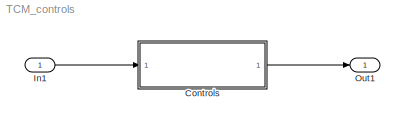
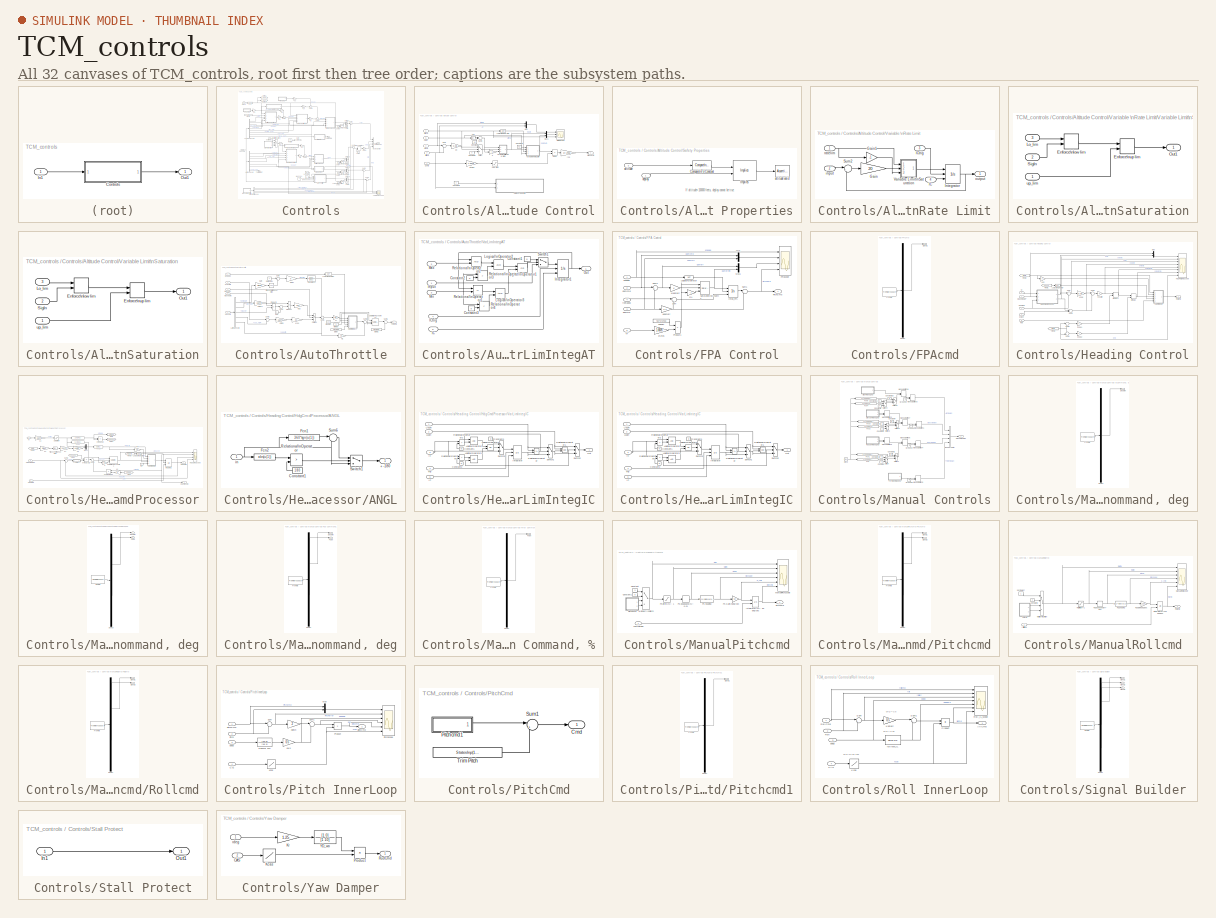
[diagram: thumbnail index - all 32 canvases of the model, root first then tree order]
MODEL TCM_controls
KIND model
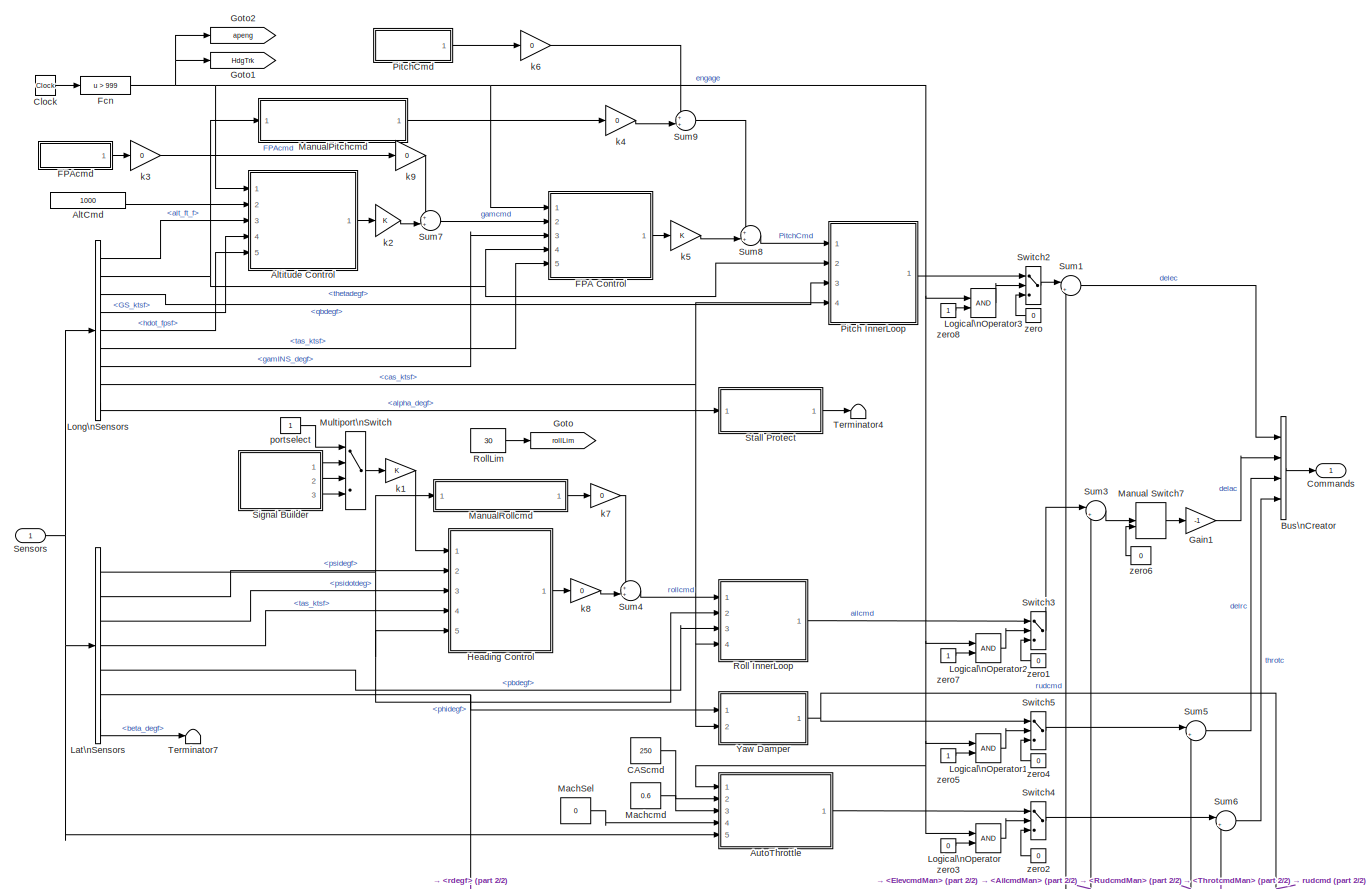
[diagram: Controls - part 1/2, most of the canvas]
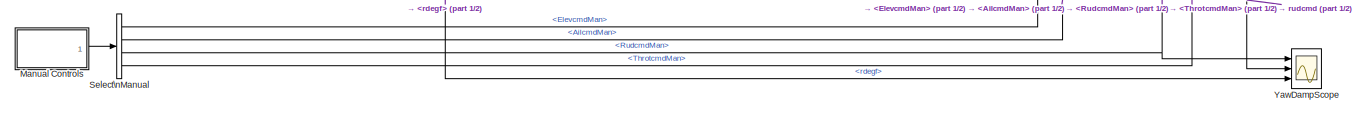
[diagram: Controls - part 2/2, full width, bottom band]
BLOCK [SubSystem] Controls
  FunctionWithSeparateData = off
  MaskHideContents = off
  MinAlgLoopOccurrences = off
  Opaque = off
  Ports = [1, 1]
  PropExecContextOutsideSubsystem = off
  RTWSystemCode = Auto
  RequestExecContextInheritance = off
  SID = 1
BLOCK [Constant] Controls/AltCmd
  SID = 3
  Value = 1000
BLOCK [SubSystem] Controls/Altitude Control
  FunctionWithSeparateData = off
  MaskHideContents = off
  MinAlgLoopOccurrences = off
  Opaque = off
  Ports = [5, 1]
  PropExecContextOutsideSubsystem = off
  RTWSystemCode = Auto
  RequestExecContextInheritance = off
  SID = 4
BLOCK [Abs] Controls/Altitude Control/Abs
  SID = 10
BLOCK [Inport] Controls/Altitude Control/AltCmd
  IconDisplay = Port number
  Port = 2
  SID = 6
BLOCK [Scope] Controls/Altitude Control/AltCtnlScope
  DataFormat = StructureWithTime
  Floating = off
  LimitDataPoints = off
  NumInputPorts = 3
  Ports = [3]
  SID = 11
  SampleTime = 0
  SaveName = ScopeData3
  ShowLegends = off
  TimeRange = 30
  YMax = 10200~15~1
  YMin = 10000~-5~0
BLOCK [Inport] Controls/Altitude Control/Altitude
  IconDisplay = Port number
  Port = 3
  SID = 7
BLOCK [Constant] Controls/Altitude Control/Constant1
  SID = 12
  Value = 0
BLOCK [Constant] Controls/Altitude Control/Constant2
  SID = 13
BLOCK [Constant] Controls/Altitude Control/Constant3
  SID = 14
  Value = 10
BLOCK [Constant] Controls/Altitude Control/Constant4
  SID = 15
  Value = 3.2
BLOCK [Product] Controls/Altitude Control/Divide
  InputSameDT = off
  Inputs = */
  OutDataTypeStr = Inherit: Inherit via internal rule
  Ports = [2, 1]
  RndMeth = Floor
  SID = 16
  SaturateOnIntegerOverflow = off
BLOCK [Gain] Controls/Altitude Control/Kh
  Gain = 0.08
  OutDataTypeStr = Inherit: Inherit via internal rule
  ParamDataTypeStr = Inherit: Inherit via internal rule
  SID = 17
  SaturateOnIntegerOverflow = off
BLOCK [Logic] Controls/Altitude Control/Logical\nOperator
  Operator = NOT
  Ports = [1, 1]
  SID = 18
BLOCK [Mux] Controls/Altitude Control/Mux
  DisplayOption = bar
  Inputs = 2
  Ports = [2, 1]
  SID = 19
BLOCK [Mux] Controls/Altitude Control/Mux1
  DisplayOption = bar
  Inputs = 2
  Ports = [2, 1]
  SID = 20
BLOCK [SubSystem] Controls/Altitude Control/Safety Properties
  CopyFcn = sldvsubsys('copy');
  DisableCoverage = on
  FunctionWithSeparateData = off
  LoadFcn = sldvsubsys('check')
  MaskHideContents = off
  MinAlgLoopOccurrences = off
  Opaque = off
  OpenFcn = open_system(gcb,'force');
  Ports = [2]
  PreSaveFcn = set_param(gcb,'SimViewingDevice','on');\nsldvsubsys('check');
  PropExecContextOutsideSubsystem = off
  RTWSystemCode = Auto
  RequestExecContextInheritance = off
  SID = 21
  SimViewingDevice = on
  Tag = VerificationSubsystem
  TreatAsAtomicUnit = on
BLOCK [Reference] Controls/Altitude Control/Safety Properties/Compare\nTo Constant  REF=simulink/Logic and Bit\nOperations/Compare\nTo Constant
  OutDataTypeStr = uint8
  Ports = [1, 1]
  SID = 21:53
  SourceBlock = simulink/Logic and Bit\nOperations/Compare\nTo Constant
  SourceType = Compare To Constant
  ZeroCross = off
  const = 100000
  relop = >
BLOCK [Reference] Controls/Altitude Control/Safety Properties/Implies  REF=sldvlib/Verification Utilities/Implies
  Ports = [2, 1]
  SID = 21:56
  SourceBlock = sldvlib/Verification Utilities/Implies
  SourceType = Design Verifier Implies
BLOCK [Inport] Controls/Altitude Control/Safety Properties/altitude
  IconDisplay = Port number
  Port = 2
  SID = 21:2
BLOCK [Assertion] Controls/Altitude Control/Safety Properties/altitude valid
  SID = 21:57
BLOCK [Inport] Controls/Altitude Control/Safety Properties/deploy
  IconDisplay = Port number
  SID = 21:1
BLOCK [Saturate] Controls/Altitude Control/Saturation
  InputPortMap = u0
  LowerLimit = 0.0001
  Ports = [1, 1]
  SID = 22
  UpperLimit = 1000
BLOCK [Sum] Controls/Altitude Control/Sum
  IconShape = round
  InputSameDT = off
  Inputs = |+-
  OutDataTypeStr = Inherit: Inherit via internal rule
  Ports = [2, 1]
  SID = 23
  SaturateOnIntegerOverflow = off
BLOCK [Sum] Controls/Altitude Control/Sum3
  IconShape = round
  Inputs = |++
  Ports = [2, 1]
  SID = 24
BLOCK [Switch] Controls/Altitude Control/Switch
  InputSameDT = off
  SID = 25
  SaturateOnIntegerOverflow = off
BLOCK [SubSystem] Controls/Altitude Control/Variable Limit\nSaturation
  FunctionWithSeparateData = off
  MaskHideContents = off
  MinAlgLoopOccurrences = off
  Opaque = off
  Ports = [3, 1]
  PropExecContextOutsideSubsystem = off
  RTWSystemCode = Auto
  RequestExecContextInheritance = off
  SID = 43
BLOCK [MinMax] Controls/Altitude Control/Variable Limit\nSaturation/Enforce\nlow lim
  Function = max
  InputSameDT = off
  Inputs = 2
  Ports = [2, 1]
  SID = 47
  SaturateOnIntegerOverflow = off
BLOCK [MinMax] Controls/Altitude Control/Variable Limit\nSaturation/Enforce\nup lim
  InputSameDT = off
  Inputs = 2
  Ports = [2, 1]
  SID = 48
  SaturateOnIntegerOverflow = off
BLOCK [Inport] Controls/Altitude Control/Variable Limit\nSaturation/Lo_lim
  IconDisplay = Port number
  Port = 3
  SID = 46
BLOCK [Outport] Controls/Altitude Control/Variable Limit\nSaturation/Out1
  IconDisplay = Port number
  SID = 49
BLOCK [Inport] Controls/Altitude Control/Variable Limit\nSaturation/SigIn
  IconDisplay = Port number
  Port = 2
  SID = 45
BLOCK [Inport] Controls/Altitude Control/Variable Limit\nSaturation/up_lim
  IconDisplay = Port number
  SID = 44
BLOCK [SubSystem] Controls/Altitude Control/Variable \nRate Limit
  FunctionWithSeparateData = off
  MaskHideContents = off
  MinAlgLoopOccurrences = off
  Opaque = off
  Ports = [4, 1]
  PropExecContextOutsideSubsystem = off
  RTWSystemCode = Auto
  RequestExecContextInheritance = off
  SID = 26
BLOCK [Gain] Controls/Altitude Control/Variable \nRate Limit/Gain
  Gain = 20
  SID = 31
BLOCK [Gain] Controls/Altitude Control/Variable \nRate Limit/Gain1
  Gain = -1
  SID = 32
BLOCK [Inport] Controls/Altitude Control/Variable \nRate Limit/IC
  IconDisplay = Port number
  Port = 4
  SID = 30
BLOCK [Inport] Controls/Altitude Control/Variable \nRate Limit/ICtrig
  IconDisplay = Port number
  Port = 3
  SID = 29
BLOCK [Integrator] Controls/Altitude Control/Variable \nRate Limit/Integrator
  ExternalReset = level
  IgnoreLimit = on
  InitialConditionSource = external
  Ports = [3, 1]
  SID = 33
BLOCK [Sum] Controls/Altitude Control/Variable \nRate Limit/Sum2
  IconShape = round
  InputSameDT = off
  Inputs = |+-
  OutDataTypeStr = Inherit: Inherit via internal rule
  Ports = [2, 1]
  SID = 34
BLOCK [SubSystem] Controls/Altitude Control/Variable \nRate Limit/Variable Limit\nSaturation
  FunctionWithSeparateData = off
  MaskHideContents = off
  MinAlgLoopOccurrences = off
  Opaque = off
  Ports = [3, 1]
  PropExecContextOutsideSubsystem = off
  RTWSystemCode = Auto
  RequestExecContextInheritance = off
  SID = 35
BLOCK [MinMax] Controls/Altitude Control/Variable \nRate Limit/Variable Limit\nSaturation/Enforce\nlow lim
  Function = max
  InputSameDT = off
  Inputs = 2
  Ports = [2, 1]
  SID = 39
  SaturateOnIntegerOverflow = off
BLOCK [MinMax] Controls/Altitude Control/Variable \nRate Limit/Variable Limit\nSaturation/Enforce\nup lim
  InputSameDT = off
  Inputs = 2
  Ports = [2, 1]
  SID = 40
  SaturateOnIntegerOverflow = off
BLOCK [Inport] Controls/Altitude Control/Variable \nRate Limit/Variable Limit\nSaturation/Lo_lim
  IconDisplay = Port number
  Port = 3
  SID = 38
BLOCK [Outport] Controls/Altitude Control/Variable \nRate Limit/Variable Limit\nSaturation/Out1
  IconDisplay = Port number
  SID = 41
BLOCK [Inport] Controls/Altitude Control/Variable \nRate Limit/Variable Limit\nSaturation/SigIn
  IconDisplay = Port number
  Port = 2
  SID = 37
BLOCK [Inport] Controls/Altitude Control/Variable \nRate Limit/Variable Limit\nSaturation/up_lim
  IconDisplay = Port number
  SID = 36
BLOCK [Inport] Controls/Altitude Control/Variable \nRate Limit/input
  IconDisplay = Port number
  Port = 2
  SID = 28
BLOCK [Outport] Controls/Altitude Control/Variable \nRate Limit/output
  IconDisplay = Port number
  SID = 42
BLOCK [Inport] Controls/Altitude Control/Variable \nRate Limit/ratelim
  IconDisplay = Port number
  SID = 27
BLOCK [Inport] Controls/Altitude Control/alteng
  IconDisplay = Port number
  SID = 5
BLOCK [Outport] Controls/Altitude Control/altgamcmd
  IconDisplay = Port number
  SID = 53
BLOCK [Inport] Controls/Altitude Control/gskts
  IconDisplay = Port number
  Port = 4
  SID = 8
BLOCK [Inport] Controls/Altitude Control/hdot
  IconDisplay = Port number
  Port = 5
  SID = 9
BLOCK [Gain] Controls/Altitude Control/k
  Gain = -1
  OutDataTypeStr = Inherit: Inherit via internal rule
  ParamDataTypeStr = Inherit: Inherit via internal rule
  SID = 50
  SaturateOnIntegerOverflow = off
BLOCK [Gain] Controls/Altitude Control/kts2fps
  Gain = 1.6878
  OutDataTypeStr = Inherit: Inherit via internal rule
  ParamDataTypeStr = Inherit: Inherit via internal rule
  SID = 51
  SaturateOnIntegerOverflow = off
BLOCK [Gain] Controls/Altitude Control/r2d
  Gain = 57.2958
  OutDataTypeStr = Inherit: Inherit via internal rule
  ParamDataTypeStr = Inherit: Inherit via internal rule
  SID = 52
  SaturateOnIntegerOverflow = off
BLOCK [SubSystem] Controls/AutoThrottle
  FunctionWithSeparateData = off
  MaskHideContents = off
  MinAlgLoopOccurrences = off
  Opaque = off
  Ports = [5, 1]
  PropExecContextOutsideSubsystem = off
  RTWSystemCode = Auto
  RequestExecContextInheritance = off
  SID = 54
BLOCK [Inport] Controls/AutoThrottle/CAScmd
  IconDisplay = Port number
  Port = 2
  SID = 56
BLOCK [Inport] Controls/AutoThrottle/Engage
  IconDisplay = Port number
  SID = 55
BLOCK [Gain] Controls/AutoThrottle/Gain
  Gain = pi/180
  OutDataTypeStr = Inherit: Inherit via internal rule
  ParamDataTypeStr = Inherit: Inherit via internal rule
  SID = 60
  SaturateOnIntegerOverflow = off
BLOCK [Gain] Controls/AutoThrottle/Gain1
  Gain = 5
  OutDataTypeStr = Inherit: Inherit via internal rule
  ParamDataTypeStr = Inherit: Inherit via internal rule
  SID = 61
  SaturateOnIntegerOverflow = off
BLOCK [Constant] Controls/AutoThrottle/ICthrot
  SID = 62
  SampleTime = -1
  Value = bias.throttle
BLOCK [Constant] Controls/AutoThrottle/ICthrot1
  SID = 63
  SampleTime = -1
  Value = bias.throttle
BLOCK [Gain] Controls/AutoThrottle/Kcas
  Gain = 0.2
  OutDataTypeStr = Inherit: Inherit via internal rule
  ParamDataTypeStr = Inherit: Inherit via internal rule
  SID = 64
  SaturateOnIntegerOverflow = off
BLOCK [Gain] Controls/AutoThrottle/Kr
  Gain = 2.5
  OutDataTypeStr = Inherit: Inherit via internal rule
  ParamDataTypeStr = Inherit: Inherit via internal rule
  SID = 65
  SaturateOnIntegerOverflow = off
BLOCK [Gain] Controls/AutoThrottle/Kr1
  Gain = 1.2
  OutDataTypeStr = Inherit: Inherit via internal rule
  ParamDataTypeStr = Inherit: Inherit via internal rule
  SID = 66
  SaturateOnIntegerOverflow = off
BLOCK [Gain] Controls/AutoThrottle/Ktas
  Gain = 0.11
  OutDataTypeStr = Inherit: Inherit via internal rule
  ParamDataTypeStr = Inherit: Inherit via internal rule
  SID = 67
  SaturateOnIntegerOverflow = off
BLOCK [BusSelector] Controls/AutoThrottle/Lat\nSensors
  OutputSignals = phidegf,tas_ktsf,machf,cas_ktsf,vgdotf
  Ports = [1, 5]
  SID = 68
BLOCK [Logic] Controls/AutoThrottle/Logical\nOperator
  AllPortsSameDT = off
  Operator = NOT
  OutDataTypeStr = boolean
  Ports = [1, 1]
  SID = 69
BLOCK [Inport] Controls/AutoThrottle/MachCmd
  IconDisplay = Port number
  Port = 3
  SID = 57
BLOCK [Inport] Controls/AutoThrottle/MachSel
  IconDisplay = Port number
  Port = 4
  SID = 58
BLOCK [Switch] Controls/AutoThrottle/PHIMC1
  InputSameDT = off
  SID = 70
  SampleTime = 0.02
  Threshold = 0.5
BLOCK [Product] Controls/AutoThrottle/Product
  InputSameDT = off
  OutDataTypeStr = Inherit: Inherit via internal rule
  Ports = [2, 1]
  SID = 71
  SaturateOnIntegerOverflow = off
BLOCK [Product] Controls/AutoThrottle/Product1
  InputSameDT = off
  Inputs = */
  OutDataTypeStr = Inherit: Inherit via internal rule
  Ports = [2, 1]
  SID = 72
  SaturateOnIntegerOverflow = off
BLOCK [Constant] Controls/AutoThrottle/RollComp1
  SID = 73
  SampleTime = -1
BLOCK [Reference] Controls/AutoThrottle/Saturation\nDynamic1  REF=simulink/Discontinuities/Saturation\nDynamic
  DoSatur = off
  LockScale = off
  OutDataType = sfix(16)
  OutDataTypeStr = Inherit: Same as second input
  OutMax = []
  OutMin = []
  OutScaling = 2^-10
  OutputDataTypeScalingMode = Same as second input
  Ports = [3, 1]
  RndMeth = Floor
  SID = 74
  SourceBlock = simulink/Discontinuities/Saturation\nDynamic
  SourceType = Saturation Dynamic
BLOCK [Inport] Controls/AutoThrottle/Sensors
  IconDisplay = Port number
  Port = 5
  SID = 59
BLOCK [Sum] Controls/AutoThrottle/Sum
  IconShape = round
  InputSameDT = off
  Inputs = |+-
  OutDataTypeStr = Inherit: Inherit via internal rule
  Ports = [2, 1]
  SID = 75
  SaturateOnIntegerOverflow = off
BLOCK [Sum] Controls/AutoThrottle/Sum1
  IconShape = round
  InputSameDT = off
  Inputs = ++-
  OutDataTypeStr = Inherit: Inherit via internal rule
  Ports = [3, 1]
  SID = 76
  SaturateOnIntegerOverflow = off
BLOCK [Sum] Controls/AutoThrottle/Sum2
  IconShape = round
  InputSameDT = off
  Inputs = |+-
  OutDataTypeStr = Inherit: Inherit via internal rule
  Ports = [2, 1]
  SID = 77
  SaturateOnIntegerOverflow = off
BLOCK [Sum] Controls/AutoThrottle/Sum3
  IconShape = round
  InputSameDT = off
  Inputs = |+-
  OutDataTypeStr = Inherit: Inherit via internal rule
  Ports = [2, 1]
  SID = 78
  SaturateOnIntegerOverflow = off
BLOCK [Sum] Controls/AutoThrottle/Sum4
  IconShape = round
  InputSameDT = off
  Inputs = |+-
  OutDataTypeStr = Inherit: Inherit via internal rule
  Ports = [2, 1]
  SID = 79
  SaturateOnIntegerOverflow = off
BLOCK [Sum] Controls/AutoThrottle/Sum5
  IconShape = round
  InputSameDT = off
  Inputs = |+-
  OutDataTypeStr = Inherit: Inherit via internal rule
  Ports = [2, 1]
  SID = 80
  SaturateOnIntegerOverflow = off
BLOCK [Outport] Controls/AutoThrottle/ThrotCmd
  IconDisplay = Port number
  SID = 107
BLOCK [TransferFcn] Controls/AutoThrottle/Transfer Fcn
  Denominator = [16 1]
  Numerator = [16 0]
  SID = 81
BLOCK [Trigonometry] Controls/AutoThrottle/Trigonometric\nFunction
  Operator = cos
  Ports = [1, 1]
  SID = 82
BLOCK [SubSystem] Controls/AutoThrottle/VarLimIntegAT
  FunctionWithSeparateData = off
  MaskHideContents = off
  MinAlgLoopOccurrences = off
  Opaque = off
  Ports = [5, 1]
  PropExecContextOutsideSubsystem = off
  RTWSystemCode = Auto
  RequestExecContextInheritance = off
  SID = 83
BLOCK [Constant] Controls/AutoThrottle/VarLimIntegAT/Constant1
  SID = 89
  SampleTime = -1
  Value = 0
BLOCK [Constant] Controls/AutoThrottle/VarLimIntegAT/Constant2
  SID = 90
  SampleTime = -1
  Value = 0
BLOCK [Constant] Controls/AutoThrottle/VarLimIntegAT/Constant3
  SID = 91
  SampleTime = -1
  Value = 0
BLOCK [Inport] Controls/AutoThrottle/VarLimIntegAT/IC
  IconDisplay = Port number
  Port = 5
  SID = 88
BLOCK [Inport] Controls/AutoThrottle/VarLimIntegAT/ICtrig
  IconDisplay = Port number
  Port = 4
  SID = 87
BLOCK [Inport] Controls/AutoThrottle/VarLimIntegAT/Input
  IconDisplay = Port number
  SID = 84
BLOCK [Integrator] Controls/AutoThrottle/VarLimIntegAT/Integrator1
  ExternalReset = level
  InitialConditionSource = external
  Ports = [3, 1]
  SID = 92
BLOCK [Logic] Controls/AutoThrottle/VarLimIntegAT/Logical\nOperator1
  Operator = OR
  Ports = [2, 1]
  SID = 93
BLOCK [Logic] Controls/AutoThrottle/VarLimIntegAT/Logical\nOperator2
  Ports = [2, 1]
  SID = 94
BLOCK [Logic] Controls/AutoThrottle/VarLimIntegAT/Logical\nOperator3
  Ports = [2, 1]
  SID = 95
BLOCK [Inport] Controls/AutoThrottle/VarLimIntegAT/Max
  IconDisplay = Port number
  Port = 2
  SID = 85
BLOCK [Inport] Controls/AutoThrottle/VarLimIntegAT/Min
  IconDisplay = Port number
  Port = 3
  SID = 86
BLOCK [Outport] Controls/AutoThrottle/VarLimIntegAT/Out
  IconDisplay = Port number
  SID = 101
BLOCK [RelationalOperator] Controls/AutoThrottle/VarLimIntegAT/Relational\nOperator1
  Operator = <=
  Ports = [2, 1]
  SID = 96
BLOCK [RelationalOperator] Controls/AutoThrottle/VarLimIntegAT/Relational\nOperator2
  Ports = [2, 1]
  SID = 97
BLOCK [RelationalOperator] Controls/AutoThrottle/VarLimIntegAT/Relational\nOperator3
  Operator = >
  Ports = [2, 1]
  SID = 98
BLOCK [RelationalOperator] Controls/AutoThrottle/VarLimIntegAT/Relational\nOperator4
  Operator = <
  Ports = [2, 1]
  SID = 99
BLOCK [Switch] Controls/AutoThrottle/VarLimIntegAT/Switch1
  SID = 100
  Threshold = 0.1
BLOCK [Gain] Controls/AutoThrottle/kt2fps
  Gain = 1.6878
  OutDataTypeStr = Inherit: Inherit via internal rule
  ParamDataTypeStr = Inherit: Inherit via internal rule
  SID = 102
  SaturateOnIntegerOverflow = off
BLOCK [Gain] Controls/AutoThrottle/kt2fps1
  Gain = 1.6878
  OutDataTypeStr = Inherit: Inherit via internal rule
  ParamDataTypeStr = Inherit: Inherit via internal rule
  SID = 103
  SaturateOnIntegerOverflow = off
BLOCK [Constant] Controls/AutoThrottle/maxthrot
  SID = 104
  SampleTime = -1
  Value = 100
BLOCK [Constant] Controls/AutoThrottle/minthrot
  SID = 105
  SampleTime = -1
  Value = 0
BLOCK [Constant] Controls/AutoThrottle/one
  SID = 106
  SampleTime = -1
BLOCK [BusCreator] Controls/Bus\nCreator
  DisplayOption = bar
  Ports = [4, 1]
  SID = 108
BLOCK [Constant] Controls/CAScmd
  SID = 109
  Value = 250
BLOCK [Clock] Controls/Clock
  SID = 110
BLOCK [Outport] Controls/Commands
  IconDisplay = Port number
  SID = 445
BLOCK [SubSystem] Controls/FPA Control
  FunctionWithSeparateData = off
  MaskHideContents = off
  MinAlgLoopOccurrences = off
  Opaque = off
  Ports = [5, 1]
  PropExecContextOutsideSubsystem = off
  RTWSystemCode = Auto
  RequestExecContextInheritance = off
  SID = 111
BLOCK [Scope] Controls/FPA Control/FPAScope
  DataFormat = StructureWithTime
  Floating = off
  LimitDataPoints = off
  NumInputPorts = 4
  Ports = [4]
  SID = 117
  SampleTime = 0
  SaveName = ScopeData12
  ShowLegends = off
  YMax = 2~5~2~10
  YMin = -1~-5~-2~-5
BLOCK [Integrator] Controls/FPA Control/Integ_FPA
  ExternalReset = level
  IgnoreLimit = on
  InitialConditionSource = external
  Ports = [3, 1]
  SID = 118
BLOCK [Gain] Controls/FPA Control/KIgamerr
  OutDataTypeStr = Inherit: Inherit via internal rule
  ParamDataTypeStr = Inherit: Inherit via internal rule
  SID = 119
  SaturateOnIntegerOverflow = off
BLOCK [Gain] Controls/FPA Control/Kgamerr
  Gain = 1.4
  OutDataTypeStr = Inherit: Inherit via internal rule
  ParamDataTypeStr = Inherit: Inherit via internal rule
  SID = 120
  SaturateOnIntegerOverflow = off
BLOCK [Logic] Controls/FPA Control/Logical\nOperator
  AllPortsSameDT = off
  Operator = NOT
  OutDataTypeStr = boolean
  Ports = [1, 1]
  SID = 121
BLOCK [Mux] Controls/FPA Control/Mux
  DisplayOption = bar
  Inputs = 2
  Ports = [2, 1]
  SID = 122
BLOCK [Mux] Controls/FPA Control/Mux1
  DisplayOption = bar
  Inputs = 2
  Ports = [2, 1]
  SID = 123
BLOCK [Outport] Controls/FPA Control/PitchCmd
  IconDisplay = Port number
  SID = 132
BLOCK [Product] Controls/FPA Control/Product1
  InputSameDT = off
  OutDataTypeStr = Inherit: Inherit via internal rule
  Ports = [2, 1]
  SID = 124
  SaturateOnIntegerOverflow = off
BLOCK [Reference] Controls/FPA Control/Saturation\nDynamic  REF=simulink/Discontinuities/Saturation\nDynamic
  DoSatur = off
  LockScale = off
  OutDataType = fixdt(1, 16)
  OutDataTypeStr = Inherit: Same as second input
  OutMax = []
  OutMin = []
  OutScaling = 2^-10
  OutputDataTypeScalingMode = Same as second input
  Ports = [3, 1]
  RndMeth = Floor
  SID = 125
  SourceBlock = simulink/Discontinuities/Saturation\nDynamic
  SourceType = Saturation Dynamic
BLOCK [Sum] Controls/FPA Control/Sum
  IconShape = round
  InputSameDT = off
  Inputs = |++
  OutDataTypeStr = Inherit: Inherit via internal rule
  Ports = [2, 1]
  SID = 126
  SaturateOnIntegerOverflow = off
BLOCK [Sum] Controls/FPA Control/Sum1
  IconShape = round
  InputSameDT = off
  Inputs = |+-
  OutDataTypeStr = Inherit: Inherit via internal rule
  Ports = [2, 1]
  SID = 127
  SaturateOnIntegerOverflow = off
BLOCK [Sum] Controls/FPA Control/Sum2
  IconShape = round
  InputSameDT = off
  Inputs = |+-
  OutDataTypeStr = Inherit: Inherit via internal rule
  Ports = [2, 1]
  SID = 128
  SaturateOnIntegerOverflow = off
BLOCK [Inport] Controls/FPA Control/VT
  IconDisplay = Port number
  Port = 5
  SID = 116
BLOCK [Inport] Controls/FPA Control/engage
  IconDisplay = Port number
  SID = 112
BLOCK [Inport] Controls/FPA Control/gamcmd
  IconDisplay = Port number
  Port = 2
  SID = 113
BLOCK [Inport] Controls/FPA Control/gamma
  IconDisplay = Port number
  Port = 3
  SID = 114
BLOCK [Constant] Controls/FPA Control/hddLim
  SID = 129
  Value = 4.83*57.2958
BLOCK [Gain] Controls/FPA Control/kt2fps
  Gain = 1.6878
  OutDataTypeStr = Inherit: Inherit via internal rule
  ParamDataTypeStr = Inherit: Inherit via internal rule
  SID = 130
  SaturateOnIntegerOverflow = off
BLOCK [Gain] Controls/FPA Control/m1
  Gain = -1
  OutDataTypeStr = Inherit: Inherit via internal rule
  ParamDataTypeStr = Inherit: Inherit via internal rule
  SID = 131
  SaturateOnIntegerOverflow = off
BLOCK [Inport] Controls/FPA Control/thetadeg
  IconDisplay = Port number
  Port = 4
  SID = 115
BLOCK [SubSystem] Controls/FPAcmd
  ClipboardFcn = sigbuilder_block('clipboard');
  CloseFcn = sigbuilder_block('close');
  ContinueFcn = sigbuilder_block('continue')
  CopyFcn = sigbuilder_block('copy');
  DeleteFcn = sigbuilder_block('delete');
  FunctionWithSeparateData = off
  LoadFcn = sigbuilder_block('load');
  MaskHideContents = on
  MinAlgLoopOccurrences = off
  ModelCloseFcn = sigbuilder_block('modelClose');
  NameChangeFcn = sigbuilder_block('namechange');
  Opaque = off
  OpenFcn = sigbuilder_block('open',[437.6 199.2 550.4 400 ]);
  PauseFcn = sigbuilder_block('pause')
  Ports = [0, 1]
  PreSaveFcn = sigbuilder_block('preSave');
  PropExecContextOutsideSubsystem = off
  RTWSystemCode = Auto
  RequestExecContextInheritance = off
  SID = 133
  StartFcn = sigbuilder_block('start');
  StopFcn = sigbuilder_block('stop');
  Tag = STV Subsys
BLOCK [Demux] Controls/FPAcmd/Demux
  Outputs = 1
  Ports = [1, 1]
  SID = 134
  Tag = STV Demux
BLOCK [FromWorkspace] Controls/FPAcmd/FromWs
  SID = 135
  SampleTime = 0
  SigBuilderData = DataTag0
  Tag = STV FromWs
  VariableName = tuvar
  VnvData = DataTag1
  ZeroCross = on
BLOCK [Outport] Controls/FPAcmd/Signal 1
  IconDisplay = Port number
  SID = 136
  Tag = STV Outport
BLOCK [Fcn] Controls/Fcn
  Expr = u > 999
  SID = 137
BLOCK [Gain] Controls/Gain1
  Gain = -1
  SID = 138
BLOCK [Goto] Controls/Goto
  GotoTag = rollLim
  SID = 139
  TagVisibility = global
BLOCK [Goto] Controls/Goto1
  GotoTag = HdgTrk
  SID = 140
  TagVisibility = global
BLOCK [Goto] Controls/Goto2
  GotoTag = apeng
  SID = 141
  TagVisibility = global
BLOCK [SubSystem] Controls/Heading Control
  FunctionWithSeparateData = off
  MaskHideContents = off
  MinAlgLoopOccurrences = off
  Opaque = off
  Ports = [5, 1]
  PropExecContextOutsideSubsystem = off
  RTWSystemCode = Auto
  RequestExecContextInheritance = off
  SID = 142
BLOCK [From] Controls/Heading Control/From1
  CloseFcn = tagdialog Close
  GotoTag = apeng
  SID = 148
  TagVisibility = global
BLOCK [From] Controls/Heading Control/From2
  CloseFcn = tagdialog Close
  GotoTag = rollLim
  SID = 149
  TagVisibility = global
BLOCK [From] Controls/Heading Control/From3
  CloseFcn = tagdialog Close
  GotoTag = rollLim
  SID = 150
  TagVisibility = global
BLOCK [Inport] Controls/Heading Control/HdgCmdMCP
  IconDisplay = Port number
  SID = 143
BLOCK [SubSystem] Controls/Heading Control/HdgCmdProcessor
  FunctionWithSeparateData = off
  MaskHideContents = off
  MinAlgLoopOccurrences = off
  Opaque = off
  Ports = [3, 2]
  PropExecContextOutsideSubsystem = off
  RTWSystemCode = Auto
  RequestExecContextInheritance = off
  SID = 151
BLOCK [Product] Controls/Heading Control/HdgCmdProcessor/2zetaOmega
  InputSameDT = off
  OutDataTypeStr = Inherit: Inherit via internal rule
  Ports = [2, 1]
  SID = 155
  SaturateOnIntegerOverflow = off
BLOCK [SubSystem] Controls/Heading Control/HdgCmdProcessor/ANGL
  FunctionWithSeparateData = off
  MaskHideContents = off
  MinAlgLoopOccurrences = off
  Opaque = off
  Ports = [1, 1]
  PropExecContextOutsideSubsystem = off
  RTWSystemCode = Auto
  RequestExecContextInheritance = off
  SID = 156
BLOCK [Outport] Controls/Heading Control/HdgCmdProcessor/ANGL/+ -180
  IconDisplay = Port number
  SID = 164
BLOCK [Constant] Controls/Heading Control/HdgCmdProcessor/ANGL/Constant1
  SID = 158
  Value = 180
BLOCK [Fcn] Controls/Heading Control/HdgCmdProcessor/ANGL/Fcn1
  Expr = 360*sgn(u(1))
  SID = 159
BLOCK [Fcn] Controls/Heading Control/HdgCmdProcessor/ANGL/Fcn2
  Expr = abs(u(1))
  SID = 160
BLOCK [RelationalOperator] Controls/Heading Control/HdgCmdProcessor/ANGL/Relational\nOperator
  InputSameDT = off
  Operator = >
  Ports = [2, 1]
  SID = 161
BLOCK [Sum] Controls/Heading Control/HdgCmdProcessor/ANGL/Sum6
  IconShape = round
  InputSameDT = off
  Inputs = |-+
  OutDataTypeStr = Inherit: Inherit via internal rule
  Ports = [2, 1]
  SID = 162
BLOCK [Switch] Controls/Heading Control/HdgCmdProcessor/ANGL/Switch1
  InputSameDT = off
  SID = 163
  Threshold = 0.1
BLOCK [Inport] Controls/Heading Control/HdgCmdProcessor/ANGL/in
  IconDisplay = Port number
  SID = 157
BLOCK [Fcn] Controls/Heading Control/HdgCmdProcessor/Fcn
  Expr = 1.6 - 0.0*u(1)
  SID = 165
BLOCK [Fcn] Controls/Heading Control/HdgCmdProcessor/Fcn1
  Expr = 514.8/u(1)
  SID = 166
BLOCK [Fcn] Controls/Heading Control/HdgCmdProcessor/Fcn2
  Expr = u(2)/u(1)
  SID = 167
BLOCK [From] Controls/Heading Control/HdgCmdProcessor/From
  CloseFcn = tagdialog Close
  GotoTag = omega
  SID = 168
BLOCK [From] Controls/Heading Control/HdgCmdProcessor/From1
  CloseFcn = tagdialog Close
  GotoTag = omegaSq
  SID = 169
BLOCK [From] Controls/Heading Control/HdgCmdProcessor/From2
  CloseFcn = tagdialog Close
  GotoTag = rollLim
  SID = 170
  TagVisibility = global
BLOCK [From] Controls/Heading Control/HdgCmdProcessor/From3
  CloseFcn = tagdialog Close
  GotoTag = HdgTrk
  SID = 171
  TagVisibility = global
BLOCK [Goto] Controls/Heading Control/HdgCmdProcessor/Goto
  GotoTag = omega
  SID = 172
BLOCK [Goto] Controls/Heading Control/HdgCmdProcessor/Goto1
  GotoTag = omegaSq
  SID = 173
BLOCK [Outport] Controls/Heading Control/HdgCmdProcessor/HdgCmd
  IconDisplay = Port number
  SID = 214
BLOCK [Inport] Controls/Heading Control/HdgCmdProcessor/HdgCmdMCP
  IconDisplay = Port number
  Port = 2
  SID = 153
BLOCK [Scope] Controls/Heading Control/HdgCmdProcessor/HdgCmdScope
  DataFormat = StructureWithTime
  Floating = off
  LimitDataPoints = off
  NumInputPorts = 4
  Ports = [4]
  SID = 174
  SampleTime = 0
  SaveName = ScopeData6
  ShowLegends = off
  YMax = 2~4~40~40
  YMin = -2~-4~-40~-40
BLOCK [Outport] Controls/Heading Control/HdgCmdProcessor/HdgRteCmd
  IconDisplay = Port number
  Port = 2
  SID = 215
BLOCK [Inport] Controls/Heading Control/HdgCmdProcessor/Heading
  IconDisplay = Port number
  Port = 3
  SID = 154
BLOCK [Integrator] Controls/Heading Control/HdgCmdProcessor/Integrator1
  ExternalReset = level
  InitialConditionSource = external
  Ports = [3, 1]
  SID = 175
BLOCK [Logic] Controls/Heading Control/HdgCmdProcessor/Logical\nOperator
  AllPortsSameDT = off
  Operator = NOT
  OutDataTypeStr = boolean
  Ports = [1, 1]
  SID = 176
BLOCK [Mux] Controls/Heading Control/HdgCmdProcessor/Mux1
  DisplayOption = bar
  Inputs = 2
  Ports = [2, 1]
  SID = 177
BLOCK [Saturate] Controls/Heading Control/HdgCmdProcessor/Saturation
  InputPortMap = u0
  LowerLimit = 0.0001
  Ports = [1, 1]
  SID = 178
  UpperLimit = 1000
BLOCK [Reference] Controls/Heading Control/HdgCmdProcessor/Saturation\nDynamic1  REF=simulink/Discontinuities/Saturation\nDynamic
  DoSatur = off
  LockScale = off
  OutDataType = fixdt(1, 16)
  OutDataTypeStr = Inherit: Same as second input
  OutMax = []
  OutMin = []
  OutScaling = 2^-10
  OutputDataTypeScalingMode = Same as second input
  Ports = [3, 1]
  RndMeth = Floor
  SID = 179
  SourceBlock = simulink/Discontinuities/Saturation\nDynamic
  SourceType = Saturation Dynamic
BLOCK [Sum] Controls/Heading Control/HdgCmdProcessor/Sum2
  IconShape = round
  InputSameDT = off
  Inputs = |+-
  OutDataTypeStr = Inherit: Inherit via internal rule
  Ports = [2, 1]
  SID = 180
  SaturateOnIntegerOverflow = off
BLOCK [Sum] Controls/Heading Control/HdgCmdProcessor/Sum3
  IconShape = round
  InputSameDT = off
  Inputs = |+-
  OutDataTypeStr = Inherit: Inherit via internal rule
  Ports = [2, 1]
  SID = 181
  SaturateOnIntegerOverflow = off
BLOCK [Trigonometry] Controls/Heading Control/HdgCmdProcessor/Trigonometric\nFunction
  Operator = tan
  Ports = [1, 1]
  SID = 182
BLOCK [SubSystem] Controls/Heading Control/HdgCmdProcessor/VarLimIntegIC
  FunctionWithSeparateData = off
  MaskHideContents = off
  MinAlgLoopOccurrences = off
  Opaque = off
  Ports = [5, 1]
  PropExecContextOutsideSubsystem = off
  RTWSystemCode = Auto
  RequestExecContextInheritance = off
  SID = 183
BLOCK [Constant] Controls/Heading Control/HdgCmdProcessor/VarLimIntegIC/Constant1
  SID = 189
  Value = 0
BLOCK [Constant] Controls/Heading Control/HdgCmdProcessor/VarLimIntegIC/Constant2
  SID = 190
  Value = 0
BLOCK [Constant] Controls/Heading Control/HdgCmdProcessor/VarLimIntegIC/Constant3
  SID = 191
  Value = 0
BLOCK [Inport] Controls/Heading Control/HdgCmdProcessor/VarLimIntegIC/IC
  IconDisplay = Port number
  Port = 5
  SID = 188
BLOCK [Inport] Controls/Heading Control/HdgCmdProcessor/VarLimIntegIC/In
  IconDisplay = Port number
  Port = 3
  SID = 186
BLOCK [Integrator] Controls/Heading Control/HdgCmdProcessor/VarLimIntegIC/Integrator
  ExternalReset = level
  InitialConditionSource = external
  Ports = [3, 1]
  SID = 192
BLOCK [Inport] Controls/Heading Control/HdgCmdProcessor/VarLimIntegIC/LoLim
  IconDisplay = Port number
  Port = 2
  SID = 185
BLOCK [Logic] Controls/Heading Control/HdgCmdProcessor/VarLimIntegIC/Logical\nOperator
  AllPortsSameDT = off
  Ports = [2, 1]
  SID = 193
BLOCK [Logic] Controls/Heading Control/HdgCmdProcessor/VarLimIntegIC/Logical\nOperator1
  AllPortsSameDT = off
  Ports = [2, 1]
  SID = 194
BLOCK [Logic] Controls/Heading Control/HdgCmdProcessor/VarLimIntegIC/Logical\nOperator2
  AllPortsSameDT = off
  Operator = OR
  Ports = [2, 1]
  SID = 195
BLOCK [Outport] Controls/Heading Control/HdgCmdProcessor/VarLimIntegIC/Out
  IconDisplay = Port number
  SID = 203
BLOCK [RelationalOperator] Controls/Heading Control/HdgCmdProcessor/VarLimIntegIC/Relational\nOperator
  InputSameDT = off
  Operator = <=
  Ports = [2, 1]
  SID = 196
BLOCK [RelationalOperator] Controls/Heading Control/HdgCmdProcessor/VarLimIntegIC/Relational\nOperator1
  InputSameDT = off
  Ports = [2, 1]
  SID = 197
BLOCK [RelationalOperator] Controls/Heading Control/HdgCmdProcessor/VarLimIntegIC/Relational\nOperator2
  InputSameDT = off
  Operator = >
  Ports = [2, 1]
  SID = 198
BLOCK [RelationalOperator] Controls/Heading Control/HdgCmdProcessor/VarLimIntegIC/Relational\nOperator3
  InputSameDT = off
  Operator = <
  Ports = [2, 1]
  SID = 199
BLOCK [Switch] Controls/Heading Control/HdgCmdProcessor/VarLimIntegIC/Switch1
  SID = 200
  Threshold = 0.5
BLOCK [Switch] Controls/Heading Control/HdgCmdProcessor/VarLimIntegIC/Switch2
  SID = 201
  Threshold = 0.5
BLOCK [Switch] Controls/Heading Control/HdgCmdProcessor/VarLimIntegIC/Switch3
  SID = 202
  Threshold = 0.5
BLOCK [Inport] Controls/Heading Control/HdgCmdProcessor/VarLimIntegIC/Trig
  IconDisplay = Port number
  Port = 4
  SID = 187
BLOCK [Inport] Controls/Heading Control/HdgCmdProcessor/VarLimIntegIC/UpLim
  IconDisplay = Port number
  SID = 184
BLOCK [Inport] Controls/Heading Control/HdgCmdProcessor/Vt
  IconDisplay = Port number
  SID = 152
BLOCK [Constant] Controls/Heading Control/HdgCmdProcessor/init
  SID = 204
  Value = 0
BLOCK [Gain] Controls/Heading Control/HdgCmdProcessor/k
  Gain = -1.0
  OutDataTypeStr = Inherit: Inherit via internal rule
  ParamDataTypeStr = Inherit: Inherit via internal rule
  SID = 205
  SaturateOnIntegerOverflow = off
BLOCK [Gain] Controls/Heading Control/HdgCmdProcessor/k1
  Gain = -1.0
  OutDataTypeStr = Inherit: Inherit via internal rule
  ParamDataTypeStr = Inherit: Inherit via internal rule
  SID = 206
  SaturateOnIntegerOverflow = off
BLOCK [Gain] Controls/Heading Control/HdgCmdProcessor/k2
  Gain = 1.6878
  OutDataTypeStr = Inherit: Inherit via internal rule
  ParamDataTypeStr = Inherit: Inherit via internal rule
  SID = 207
  SaturateOnIntegerOverflow = off
BLOCK [Gain] Controls/Heading Control/HdgCmdProcessor/k3
  Gain = pi/180
  OutDataTypeStr = Inherit: Inherit via internal rule
  ParamDataTypeStr = Inherit: Inherit via internal rule
  SID = 208
  SaturateOnIntegerOverflow = off
BLOCK [Gain] Controls/Heading Control/HdgCmdProcessor/k4
  Gain = 32.174
  OutDataTypeStr = Inherit: Inherit via internal rule
  ParamDataTypeStr = Inherit: Inherit via internal rule
  SID = 209
  SaturateOnIntegerOverflow = off
BLOCK [Gain] Controls/Heading Control/HdgCmdProcessor/k5
  Gain = 180/pi
  OutDataTypeStr = Inherit: Inherit via internal rule
  ParamDataTypeStr = Inherit: Inherit via internal rule
  SID = 210
  SaturateOnIntegerOverflow = off
BLOCK [Gain] Controls/Heading Control/HdgCmdProcessor/k6
  Gain = 2
  OutDataTypeStr = Inherit: Inherit via internal rule
  ParamDataTypeStr = Inherit: Inherit via internal rule
  SID = 211
  SaturateOnIntegerOverflow = off
BLOCK [Product] Controls/Heading Control/HdgCmdProcessor/omegaSq
  InputSameDT = off
  OutDataTypeStr = Inherit: Inherit via internal rule
  Ports = [2, 1]
  SID = 212
  SaturateOnIntegerOverflow = off
BLOCK [Product] Controls/Heading Control/HdgCmdProcessor/omegaSq2
  InputSameDT = off
  OutDataTypeStr = Inherit: Inherit via internal rule
  Ports = [2, 1]
  SID = 213
  SaturateOnIntegerOverflow = off
BLOCK [Scope] Controls/Heading Control/HdgRollCmdScope
  DataFormat = StructureWithTime
  Floating = off
  LimitDataPoints = off
  NumInputPorts = 8
  Ports = [8]
  SID = 216
  SampleTime = 0
  SaveName = ScopeData7
  ShowLegends = off
  YMax = 30~30~10~10~4~10~1~5
  YMin = -30~-30~-10~-10~-4~-10~0~-5
BLOCK [Inport] Controls/Heading Control/Heading
  IconDisplay = Port number
  Port = 2
  SID = 144
BLOCK [Gain] Controls/Heading Control/Khdg
  Gain = 0.05
  OutDataTypeStr = Inherit: Inherit via internal rule
  ParamDataTypeStr = Inherit: Inherit via internal rule
  SID = 217
  SaturateOnIntegerOverflow = off
BLOCK [Gain] Controls/Heading Control/Khdg1
  OutDataTypeStr = Inherit: Inherit via internal rule
  ParamDataTypeStr = Inherit: Inherit via internal rule
  SID = 218
  SaturateOnIntegerOverflow = off
BLOCK [Gain] Controls/Heading Control/Khdg2
  OutDataTypeStr = Inherit: Inherit via internal rule
  ParamDataTypeStr = Inherit: Inherit via internal rule
  SID = 219
  SaturateOnIntegerOverflow = off
BLOCK [Gain] Controls/Heading Control/Khdgrte
  Gain = 3
  OutDataTypeStr = Inherit: Inherit via internal rule
  ParamDataTypeStr = Inherit: Inherit via internal rule
  SID = 220
  SaturateOnIntegerOverflow = off
BLOCK [Logic] Controls/Heading Control/Logical\nOperator
  AllPortsSameDT = off
  Operator = NOT
  OutDataTypeStr = boolean
  Ports = [1, 1]
  SID = 221
BLOCK [MinMax] Controls/Heading Control/MinMax
  InputSameDT = off
  Inputs = 2
  Ports = [2, 1]
  SID = 222
  SaturateOnIntegerOverflow = off
BLOCK [MinMax] Controls/Heading Control/MinMax1
  Function = max
  InputSameDT = off
  Inputs = 2
  Ports = [2, 1]
  SID = 223
  SaturateOnIntegerOverflow = off
BLOCK [Mux] Controls/Heading Control/Mux
  DisplayOption = bar
  Inputs = 2
  Ports = [2, 1]
  SID = 224
BLOCK [Inport] Controls/Heading Control/Roll
  IconDisplay = Port number
  Port = 5
  SID = 147
BLOCK [Outport] Controls/Heading Control/RollCmd
  IconDisplay = Port number
  SID = 252
BLOCK [Sum] Controls/Heading Control/Sum
  IconShape = round
  InputSameDT = off
  Inputs = |+-
  OutDataTypeStr = Inherit: Inherit via internal rule
  Ports = [2, 1]
  SID = 225
  SaturateOnIntegerOverflow = off
BLOCK [Sum] Controls/Heading Control/Sum1
  IconShape = round
  InputSameDT = off
  Inputs = |++
  OutDataTypeStr = Inherit: Inherit via internal rule
  Ports = [2, 1]
  SID = 226
  SaturateOnIntegerOverflow = off
BLOCK [Sum] Controls/Heading Control/Sum2
  IconShape = round
  InputSameDT = off
  Inputs = |+-
  OutDataTypeStr = Inherit: Inherit via internal rule
  Ports = [2, 1]
  SID = 227
  SaturateOnIntegerOverflow = off
BLOCK [Sum] Controls/Heading Control/Sum3
  IconShape = round
  InputSameDT = off
  Inputs = |--
  OutDataTypeStr = Inherit: Inherit via internal rule
  Ports = [2, 1]
  SID = 228
  SaturateOnIntegerOverflow = off
BLOCK [Sum] Controls/Heading Control/Sum4
  IconShape = round
  InputSameDT = off
  Inputs = +-|
  OutDataTypeStr = Inherit: Inherit via internal rule
  Ports = [2, 1]
  SID = 229
  SaturateOnIntegerOverflow = off
BLOCK [SubSystem] Controls/Heading Control/VarLimIntegIC
  FunctionWithSeparateData = off
  MaskHideContents = off
  MinAlgLoopOccurrences = off
  Opaque = off
  Ports = [5, 1]
  PropExecContextOutsideSubsystem = off
  RTWSystemCode = Auto
  RequestExecContextInheritance = off
  SID = 230
BLOCK [Constant] Controls/Heading Control/VarLimIntegIC/Constant1
  SID = 236
  Value = 0
BLOCK [Constant] Controls/Heading Control/VarLimIntegIC/Constant2
  SID = 237
  Value = 0
BLOCK [Constant] Controls/Heading Control/VarLimIntegIC/Constant3
  SID = 238
  Value = 0
BLOCK [Inport] Controls/Heading Control/VarLimIntegIC/IC
  IconDisplay = Port number
  Port = 5
  SID = 235
BLOCK [Inport] Controls/Heading Control/VarLimIntegIC/In
  IconDisplay = Port number
  Port = 3
  SID = 233
BLOCK [Integrator] Controls/Heading Control/VarLimIntegIC/Integrator
  ExternalReset = level
  InitialConditionSource = external
  Ports = [3, 1]
  SID = 239
BLOCK [Inport] Controls/Heading Control/VarLimIntegIC/LoLim
  IconDisplay = Port number
  Port = 2
  SID = 232
BLOCK [Logic] Controls/Heading Control/VarLimIntegIC/Logical\nOperator
  AllPortsSameDT = off
  Ports = [2, 1]
  SID = 240
BLOCK [Logic] Controls/Heading Control/VarLimIntegIC/Logical\nOperator1
  AllPortsSameDT = off
  Ports = [2, 1]
  SID = 241
BLOCK [Logic] Controls/Heading Control/VarLimIntegIC/Logical\nOperator2
  AllPortsSameDT = off
  Operator = OR
  Ports = [2, 1]
  SID = 242
BLOCK [Outport] Controls/Heading Control/VarLimIntegIC/Out
  IconDisplay = Port number
  SID = 250
BLOCK [RelationalOperator] Controls/Heading Control/VarLimIntegIC/Relational\nOperator
  InputSameDT = off
  Operator = <=
  Ports = [2, 1]
  SID = 243
BLOCK [RelationalOperator] Controls/Heading Control/VarLimIntegIC/Relational\nOperator1
  InputSameDT = off
  Ports = [2, 1]
  SID = 244
BLOCK [RelationalOperator] Controls/Heading Control/VarLimIntegIC/Relational\nOperator2
  InputSameDT = off
  Operator = >
  Ports = [2, 1]
  SID = 245
BLOCK [RelationalOperator] Controls/Heading Control/VarLimIntegIC/Relational\nOperator3
  InputSameDT = off
  Operator = <
  Ports = [2, 1]
  SID = 246
BLOCK [Switch] Controls/Heading Control/VarLimIntegIC/Switch1
  SID = 247
  Threshold = 0.5
BLOCK [Switch] Controls/Heading Control/VarLimIntegIC/Switch2
  SID = 248
  Threshold = 0.5
BLOCK [Switch] Controls/Heading Control/VarLimIntegIC/Switch3
  SID = 249
  Threshold = 0.5
BLOCK [Inport] Controls/Heading Control/VarLimIntegIC/Trig
  IconDisplay = Port number
  Port = 4
  SID = 234
BLOCK [Inport] Controls/Heading Control/VarLimIntegIC/UpLim
  IconDisplay = Port number
  SID = 231
BLOCK [Inport] Controls/Heading Control/Vt
  IconDisplay = Port number
  Port = 4
  SID = 146
BLOCK [Inport] Controls/Heading Control/psidot
  IconDisplay = Port number
  Port = 3
  SID = 145
BLOCK [Gain] Controls/Heading Control/sgn
  Gain = -1
  OutDataTypeStr = Inherit: Inherit via internal rule
  ParamDataTypeStr = Inherit: Inherit via internal rule
  SID = 251
  SaturateOnIntegerOverflow = off
BLOCK [BusSelector] Controls/Lat\nSensors
  OutputSignals = phidegf,psidegf,EulerRates.psidotdeg,tas_ktsf,pbdegf,rdegf,beta_degf
  Ports = [1, 7]
  SID = 253
BLOCK [Logic] Controls/Logical\nOperator
  AllPortsSameDT = off
  OutDataTypeStr = boolean
  Ports = [2, 1]
  SID = 254
BLOCK [Logic] Controls/Logical\nOperator1
  AllPortsSameDT = off
  OutDataTypeStr = boolean
  Ports = [2, 1]
  SID = 255
BLOCK [Logic] Controls/Logical\nOperator2
  AllPortsSameDT = off
  OutDataTypeStr = boolean
  Ports = [2, 1]
  SID = 256
BLOCK [Logic] Controls/Logical\nOperator3
  AllPortsSameDT = off
  OutDataTypeStr = boolean
  Ports = [2, 1]
  SID = 257
BLOCK [BusSelector] Controls/Long\nSensors
  OutputSignals = alt_ft_f,thetadegf,qbdegf,GS_ktsf,hdot_fpsf,tas_ktsf,gamINS_degf,cas_ktsf,alpha_degf
  Ports = [1, 9]
  SID = 258
BLOCK [Constant] Controls/MachSel
  SID = 259
  Value = 0
BLOCK [Constant] Controls/Machcmd
  SID = 260
  Value = 0.6
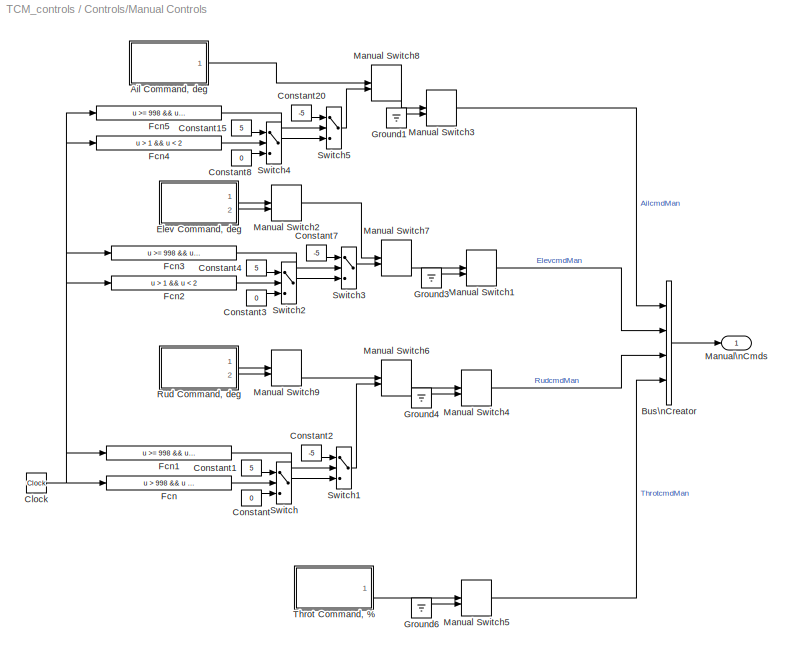
BLOCK [SubSystem] Controls/Manual Controls
  FunctionWithSeparateData = off
  MaskHideContents = off
  MinAlgLoopOccurrences = off
  Opaque = off
  Ports = [0, 1]
  PropExecContextOutsideSubsystem = off
  RTWSystemCode = Auto
  RequestExecContextInheritance = off
  SID = 261
BLOCK [SubSystem] Controls/Manual Controls/Ail Command, deg
  ClipboardFcn = sigbuilder_block('clipboard');
  CloseFcn = sigbuilder_block('close');
  ContinueFcn = sigbuilder_block('continue')
  CopyFcn = sigbuilder_block('copy');
  DeleteFcn = sigbuilder_block('delete');
  FunctionWithSeparateData = off
  LoadFcn = sigbuilder_block('load');
  MaskHideContents = on
  MinAlgLoopOccurrences = off
  ModelCloseFcn = sigbuilder_block('modelClose');
  NameChangeFcn = sigbuilder_block('namechange');
  Opaque = off
  OpenFcn = sigbuilder_block('open',[20.16 261.12 550.08 400.32 ]);
  PauseFcn = sigbuilder_block('pause')
  Ports = [0, 1]
  PreSaveFcn = sigbuilder_block('preSave');
  PropExecContextOutsideSubsystem = off
  RTWSystemCode = Auto
  RequestExecContextInheritance = off
  SID = 262
  StartFcn = sigbuilder_block('start');
  StopFcn = sigbuilder_block('stop');
  Tag = STV Subsys
BLOCK [Demux] Controls/Manual Controls/Ail Command, deg/Demux
  Outputs = 1
  Ports = [1, 1]
  SID = 263
  Tag = STV Demux
BLOCK [Outport] Controls/Manual Controls/Ail Command, deg/Doublet
  IconDisplay = Port number
  SID = 265
  Tag = STV Outport
BLOCK [FromWorkspace] Controls/Manual Controls/Ail Command, deg/FromWs
  SID = 264
  SampleTime = 0
  SigBuilderData = DataTag2
  Tag = STV FromWs
  VariableName = tuvar
  VnvData = DataTag3
  ZeroCross = on
BLOCK [BusCreator] Controls/Manual Controls/Bus\nCreator
  DisplayOption = bar
  Ports = [4, 1]
  SID = 266
BLOCK [Clock] Controls/Manual Controls/Clock
  SID = 267
BLOCK [Constant] Controls/Manual Controls/Constant
  SID = 268
  Value = 0
BLOCK [Constant] Controls/Manual Controls/Constant1
  SID = 269
  Value = 5
BLOCK [Constant] Controls/Manual Controls/Constant15
  SID = 270
  Value = 5
BLOCK [Constant] Controls/Manual Controls/Constant2
  SID = 271
  Value = -5
BLOCK [Constant] Controls/Manual Controls/Constant20
  SID = 272
  Value = -5
BLOCK [Constant] Controls/Manual Controls/Constant3
  SID = 273
  Value = 0
BLOCK [Constant] Controls/Manual Controls/Constant4
  SID = 274
  Value = 5
BLOCK [Constant] Controls/Manual Controls/Constant7
  SID = 275
  Value = -5
BLOCK [Constant] Controls/Manual Controls/Constant8
  SID = 276
  Value = 0
BLOCK [SubSystem] Controls/Manual Controls/Elev Command, deg
  ClipboardFcn = sigbuilder_block('clipboard');
  CloseFcn = sigbuilder_block('close');
  ContinueFcn = sigbuilder_block('continue')
  CopyFcn = sigbuilder_block('copy');
  DeleteFcn = sigbuilder_block('delete');
  FunctionWithSeparateData = off
  LoadFcn = sigbuilder_block('load');
  MaskHideContents = on
  MinAlgLoopOccurrences = off
  ModelCloseFcn = sigbuilder_block('modelClose');
  NameChangeFcn = sigbuilder_block('namechange');
  Opaque = off
  OpenFcn = sigbuilder_block('open',[550.08 198.72 550.08 400.32 ]);
  PauseFcn = sigbuilder_block('pause')
  Ports = [0, 2]
  PreSaveFcn = sigbuilder_block('preSave');
  PropExecContextOutsideSubsystem = off
  RTWSystemCode = Auto
  RequestExecContextInheritance = off
  SID = 277
  StartFcn = sigbuilder_block('start');
  StopFcn = sigbuilder_block('stop');
  Tag = STV Subsys
BLOCK [Demux] Controls/Manual Controls/Elev Command, deg/Demux
  Outputs = 2
  Ports = [1, 2]
  SID = 278
  Tag = STV Demux
BLOCK [Outport] Controls/Manual Controls/Elev Command, deg/Doublet
  IconDisplay = Port number
  SID = 280
  Tag = STV Outport
BLOCK [FromWorkspace] Controls/Manual Controls/Elev Command, deg/FromWs
  SID = 279
  SampleTime = 0
  SigBuilderData = DataTag4
  Tag = STV FromWs
  VariableName = tuvar
  VnvData = DataTag5
  ZeroCross = on
BLOCK [Outport] Controls/Manual Controls/Elev Command, deg/Pulse
  IconDisplay = Port number
  Port = 2
  SID = 281
  Tag = STV Outport
BLOCK [Fcn] Controls/Manual Controls/Fcn
  Expr = u > 998 && u < 999
  SID = 282
BLOCK [Fcn] Controls/Manual Controls/Fcn1
  Expr = u >= 998 && u < 999
  SID = 283
BLOCK [Fcn] Controls/Manual Controls/Fcn2
  Expr = u > 1 && u < 2
  SID = 284
BLOCK [Fcn] Controls/Manual Controls/Fcn3
  Expr = u >= 998 && u < 999
  SID = 285
BLOCK [Fcn] Controls/Manual Controls/Fcn4
  Expr = u > 1 && u < 2
  SID = 286
BLOCK [Fcn] Controls/Manual Controls/Fcn5
  Expr = u >= 998 && u < 999
  SID = 287
BLOCK [Ground] Controls/Manual Controls/Ground1
  SID = 288
BLOCK [Ground] Controls/Manual Controls/Ground3
  SID = 289
BLOCK [Ground] Controls/Manual Controls/Ground4
  SID = 290
BLOCK [Ground] Controls/Manual Controls/Ground6
  SID = 291
BLOCK [ManualSwitch] Controls/Manual Controls/Manual Switch1
  CurrentSetting = 0
  SID = 292
BLOCK [ManualSwitch] Controls/Manual Controls/Manual Switch2
  SID = 293
BLOCK [ManualSwitch] Controls/Manual Controls/Manual Switch3
  CurrentSetting = 0
  SID = 294
BLOCK [ManualSwitch] Controls/Manual Controls/Manual Switch4
  CurrentSetting = 0
  SID = 295
BLOCK [ManualSwitch] Controls/Manual Controls/Manual Switch5
  SID = 296
BLOCK [ManualSwitch] Controls/Manual Controls/Manual Switch6
  SID = 297
BLOCK [ManualSwitch] Controls/Manual Controls/Manual Switch7
  CurrentSetting = 0
  SID = 298
BLOCK [ManualSwitch] Controls/Manual Controls/Manual Switch8
  SID = 299
BLOCK [ManualSwitch] Controls/Manual Controls/Manual Switch9
  SID = 300
BLOCK [Outport] Controls/Manual Controls/Manual\nCmds
  IconDisplay = Port number
  SID = 316
BLOCK [SubSystem] Controls/Manual Controls/Rud Command, deg
  ClipboardFcn = sigbuilder_block('clipboard');
  CloseFcn = sigbuilder_block('close');
  ContinueFcn = sigbuilder_block('continue')
  CopyFcn = sigbuilder_block('copy');
  DeleteFcn = sigbuilder_block('delete');
  FunctionWithSeparateData = off
  LoadFcn = sigbuilder_block('load');
  MaskHideContents = on
  MinAlgLoopOccurrences = off
  ModelCloseFcn = sigbuilder_block('modelClose');
  NameChangeFcn = sigbuilder_block('namechange');
  Opaque = off
  OpenFcn = sigbuilder_block('open',[437.6 199.2 550.4 400 ]);
  PauseFcn = sigbuilder_block('pause')
  Ports = [0, 2]
  PreSaveFcn = sigbuilder_block('preSave');
  PropExecContextOutsideSubsystem = off
  RTWSystemCode = Auto
  RequestExecContextInheritance = off
  SID = 301
  StartFcn = sigbuilder_block('start');
  StopFcn = sigbuilder_block('stop');
  Tag = STV Subsys
BLOCK [Demux] Controls/Manual Controls/Rud Command, deg/Demux
  Outputs = 2
  Ports = [1, 2]
  SID = 302
  Tag = STV Demux
BLOCK [Outport] Controls/Manual Controls/Rud Command, deg/Doublet
  IconDisplay = Port number
  SID = 304
  Tag = STV Outport
BLOCK [FromWorkspace] Controls/Manual Controls/Rud Command, deg/FromWs
  SID = 303
  SampleTime = 0
  SigBuilderData = DataTag6
  Tag = STV FromWs
  VariableName = tuvar
  VnvData = DataTag7
  ZeroCross = on
BLOCK [Outport] Controls/Manual Controls/Rud Command, deg/Pulse
  IconDisplay = Port number
  Port = 2
  SID = 305
  Tag = STV Outport
BLOCK [Switch] Controls/Manual Controls/Switch
  InputSameDT = off
  SID = 306
  SaturateOnIntegerOverflow = off
  Threshold = .5
BLOCK [Switch] Controls/Manual Controls/Switch1
  InputSameDT = off
  SID = 307
  SaturateOnIntegerOverflow = off
  Threshold = .5
BLOCK [Switch] Controls/Manual Controls/Switch2
  InputSameDT = off
  SID = 308
  SaturateOnIntegerOverflow = off
  Threshold = .5
BLOCK [Switch] Controls/Manual Controls/Switch3
  InputSameDT = off
  SID = 309
  SaturateOnIntegerOverflow = off
  Threshold = .5
BLOCK [Switch] Controls/Manual Controls/Switch4
  InputSameDT = off
  SID = 310
  SaturateOnIntegerOverflow = off
  Threshold = .5
BLOCK [Switch] Controls/Manual Controls/Switch5
  InputSameDT = off
  SID = 311
  SaturateOnIntegerOverflow = off
  Threshold = .5
BLOCK [SubSystem] Controls/Manual Controls/Throt Command, %
  ClipboardFcn = sigbuilder_block('clipboard');
  CloseFcn = sigbuilder_block('close');
  ContinueFcn = sigbuilder_block('continue')
  CopyFcn = sigbuilder_block('copy');
  DeleteFcn = sigbuilder_block('delete');
  FunctionWithSeparateData = off
  LoadFcn = sigbuilder_block('load');
  MaskHideContents = on
  MinAlgLoopOccurrences = off
  ModelCloseFcn = sigbuilder_block('modelClose');
  NameChangeFcn = sigbuilder_block('namechange');
  Opaque = off
  OpenFcn = sigbuilder_block('open',[436.656 201.841 549.567 399.685 ]);
  PauseFcn = sigbuilder_block('pause')
  Ports = [0, 1]
  PreSaveFcn = sigbuilder_block('preSave');
  PropExecContextOutsideSubsystem = off
  RTWSystemCode = Auto
  RequestExecContextInheritance = off
  SID = 312
  StartFcn = sigbuilder_block('start');
  StopFcn = sigbuilder_block('stop');
  Tag = STV Subsys
BLOCK [Demux] Controls/Manual Controls/Throt Command, %/Demux
  Outputs = 1
  Ports = [1, 1]
  SID = 313
  Tag = STV Demux
BLOCK [FromWorkspace] Controls/Manual Controls/Throt Command, %/FromWs
  SID = 314
  SampleTime = 0
  SigBuilderData = DataTag8
  Tag = STV FromWs
  VariableName = tuvar
  VnvData = DataTag9
  ZeroCross = on
BLOCK [Outport] Controls/Manual Controls/Throt Command, %/Pulse
  IconDisplay = Port number
  SID = 315
  Tag = STV Outport
BLOCK [ManualSwitch] Controls/Manual Switch7
  SID = 317
BLOCK [SubSystem] Controls/ManualPitchcmd
  FunctionWithSeparateData = off
  MaskHideContents = off
  MinAlgLoopOccurrences = off
  Opaque = off
  Ports = [1, 1]
  PropExecContextOutsideSubsystem = off
  RTWSystemCode = Auto
  RequestExecContextInheritance = off
  SID = 318
BLOCK [Constant] Controls/ManualPitchcmd/Constant
  SID = 320
  Value = 3
BLOCK [Constant] Controls/ManualPitchcmd/Constant1
  SID = 321
  Value = 0
BLOCK [Integrator] Controls/ManualPitchcmd/Integrator\n+//- 50 deg//sec
  InitialConditionSource = external
  LimitOutput = on
  LowerSaturationLimit = -50
  Ports = [2, 1]
  SID = 322
  UpperSaturationLimit = 50
BLOCK [Scope] Controls/ManualPitchcmd/ManualPitchScope
  DataFormat = StructureWithTime
  Floating = off
  NumInputPorts = 6
  Ports = [6]
  SID = 323
  SampleTime = 0
  SaveName = ScopeData8
  ShowLegends = off
  YMax = 5~5~5~5~5~5
  YMin = -5~-5~-5~-5~-5~-5
BLOCK [MultiPortSwitch] Controls/ManualPitchcmd/Multiport\nSwitch
  InputSameDT = off
  Ports = [4, 1]
  SID = 324
  SaturateOnIntegerOverflow = off
BLOCK [Gain] Controls/ManualPitchcmd/PS Gain\ndeg//sec
  Gain = 50
  OutDataTypeStr = Inherit: Inherit via internal rule
  ParamDataTypeStr = Inherit: Inherit via internal rule
  SID = 325
  SaturateOnIntegerOverflow = off
BLOCK [Fcn] Controls/ManualPitchcmd/PS Shaping 
  Expr = u(1)*abs(u(1))^1.0
  SID = 326
BLOCK [DeadZone] Controls/ManualPitchcmd/PS deadband\n+//- 0.01
  LowerValue = -0.01
  SID = 327
  UpperValue = 0.01
BLOCK [Saturate] Controls/ManualPitchcmd/PS limits\n+//- 1
  InputPortMap = u0
  LowerLimit = -1
  Ports = [1, 1]
  SID = 328
  UpperLimit = 1
BLOCK [Outport] Controls/ManualPitchcmd/PitchCmd
  IconDisplay = Port number
  SID = 334
BLOCK [SubSystem] Controls/ManualPitchcmd/Pitchcmd
  ClipboardFcn = sigbuilder_block('clipboard');
  CloseFcn = sigbuilder_block('close');
  ContinueFcn = sigbuilder_block('continue')
  CopyFcn = sigbuilder_block('copy');
  DeleteFcn = sigbuilder_block('delete');
  FunctionWithSeparateData = off
  LoadFcn = sigbuilder_block('load');
  MaskHideContents = on
  MinAlgLoopOccurrences = off
  ModelCloseFcn = sigbuilder_block('modelClose');
  NameChangeFcn = sigbuilder_block('namechange');
  Opaque = off
  OpenFcn = sigbuilder_block('open',[159.36 418.56 676.8 484.8 ]);
  PauseFcn = sigbuilder_block('pause')
  Ports = [0, 2]
  PreSaveFcn = sigbuilder_block('preSave');
  PropExecContextOutsideSubsystem = off
  RTWSystemCode = Auto
  RequestExecContextInheritance = off
  SID = 329
  StartFcn = sigbuilder_block('start');
  StopFcn = sigbuilder_block('stop');
  Tag = STV Subsys
BLOCK [Demux] Controls/ManualPitchcmd/Pitchcmd/Demux
  Outputs = 2
  Ports = [1, 2]
  SID = 330
  Tag = STV Demux
BLOCK [FromWorkspace] Controls/ManualPitchcmd/Pitchcmd/FromWs
  SID = 331
  SampleTime = 0
  SigBuilderData = DataTag10
  Tag = STV FromWs
  VariableName = tuvar
  VnvData = DataTag11
  ZeroCross = on
BLOCK [Outport] Controls/ManualPitchcmd/Pitchcmd/Signal 1
  IconDisplay = Port number
  SID = 332
  Tag = STV Outport
BLOCK [Outport] Controls/ManualPitchcmd/Pitchcmd/Signal 2
  IconDisplay = Port number
  Port = 2
  SID = 333
  Tag = STV Outport
BLOCK [Inport] Controls/ManualPitchcmd/Thetafiltdeg
  IconDisplay = Port number
  SID = 319
BLOCK [SubSystem] Controls/ManualRollcmd
  FunctionWithSeparateData = off
  MaskHideContents = off
  MinAlgLoopOccurrences = off
  Opaque = off
  Ports = [1, 1]
  PropExecContextOutsideSubsystem = off
  RTWSystemCode = Auto
  RequestExecContextInheritance = off
  SID = 335
BLOCK [Constant] Controls/ManualRollcmd/Constant1
  SID = 337
  Value = 0
BLOCK [Integrator] Controls/ManualRollcmd/Integrator\n+//- 225 deg//sec
  InitialConditionSource = external
  LimitOutput = on
  LowerSaturationLimit = -225
  Ports = [2, 1]
  SID = 338
  UpperSaturationLimit = 225
BLOCK [Scope] Controls/ManualRollcmd/ManualRollScope
  DataFormat = StructureWithTime
  Floating = off
  NumInputPorts = 6
  Ports = [6]
  SID = 339
  SampleTime = 0
  SaveName = ScopeData9
  ShowLegends = off
  YMax = 5~5~5~5~5~5
  YMin = -5~-5~-5~-5~-5~-5
BLOCK [MultiPortSwitch] Controls/ManualRollcmd/Multiport\nSwitch
  InputSameDT = off
  Ports = [4, 1]
  SID = 340
  SaturateOnIntegerOverflow = off
BLOCK [Gain] Controls/ManualRollcmd/RS Gain\ndeg//sec
  Gain = 225
  OutDataTypeStr = Inherit: Inherit via internal rule
  ParamDataTypeStr = Inherit: Inherit via internal rule
  SID = 341
  SaturateOnIntegerOverflow = off
BLOCK [Fcn] Controls/ManualRollcmd/RS Shaping 
  Expr = u(1)*abs(u(1))^1.0
  SID = 342
BLOCK [DeadZone] Controls/ManualRollcmd/RS deadband\n+//- 0.01
  LowerValue = -0.01
  SID = 343
  UpperValue = 0.01
BLOCK [Saturate] Controls/ManualRollcmd/RS limits\n+//- 1
  InputPortMap = u0
  LowerLimit = -1
  Ports = [1, 1]
  SID = 344
  UpperLimit = 1
BLOCK [Outport] Controls/ManualRollcmd/RollCmd
  IconDisplay = Port number
  SID = 351
BLOCK [SubSystem] Controls/ManualRollcmd/Rollcmd
  ClipboardFcn = sigbuilder_block('clipboard');
  CloseFcn = sigbuilder_block('close');
  ContinueFcn = sigbuilder_block('continue')
  CopyFcn = sigbuilder_block('copy');
  DeleteFcn = sigbuilder_block('delete');
  FunctionWithSeparateData = off
  LoadFcn = sigbuilder_block('load');
  MaskHideContents = on
  MinAlgLoopOccurrences = off
  ModelCloseFcn = sigbuilder_block('modelClose');
  NameChangeFcn = sigbuilder_block('namechange');
  Opaque = off
  OpenFcn = sigbuilder_block('open',[159.36 418.56 676.8 484.8 ]);
  PauseFcn = sigbuilder_block('pause')
  Ports = [0, 2]
  PreSaveFcn = sigbuilder_block('preSave');
  PropExecContextOutsideSubsystem = off
  RTWSystemCode = Auto
  RequestExecContextInheritance = off
  SID = 345
  StartFcn = sigbuilder_block('start');
  StopFcn = sigbuilder_block('stop');
  Tag = STV Subsys
BLOCK [Demux] Controls/ManualRollcmd/Rollcmd/Demux
  Outputs = 2
  Ports = [1, 2]
  SID = 346
  Tag = STV Demux
BLOCK [FromWorkspace] Controls/ManualRollcmd/Rollcmd/FromWs
  SID = 347
  SampleTime = 0
  SigBuilderData = DataTag12
  Tag = STV FromWs
  VariableName = tuvar
  VnvData = DataTag13
  ZeroCross = on
BLOCK [Outport] Controls/ManualRollcmd/Rollcmd/Signal 1
  IconDisplay = Port number
  SID = 348
  Tag = STV Outport
BLOCK [Outport] Controls/ManualRollcmd/Rollcmd/Signal 2
  IconDisplay = Port number
  Port = 2
  SID = 349
  Tag = STV Outport
BLOCK [Constant] Controls/ManualRollcmd/portselect
  SID = 350
BLOCK [Inport] Controls/ManualRollcmd/rollfiltdeg
  IconDisplay = Port number
  SID = 336
BLOCK [MultiPortSwitch] Controls/Multiport\nSwitch
  InputSameDT = off
  Ports = [4, 1]
  SID = 352
  SaturateOnIntegerOverflow = off
BLOCK [SubSystem] Controls/Pitch InnerLoop
  FunctionWithSeparateData = off
  MaskHideContents = off
  MinAlgLoopOccurrences = off
  Opaque = off
  Ports = [4, 1]
  PropExecContextOutsideSubsystem = off
  RTWSystemCode = Auto
  RequestExecContextInheritance = off
  SID = 353
BLOCK [Inport] Controls/Pitch InnerLoop/CAS
  IconDisplay = Port number
  Port = 4
  SID = 357
BLOCK [Outport] Controls/Pitch InnerLoop/ElevCmd
  IconDisplay = Port number
  SID = 367
BLOCK [Lookup] Controls/Pitch InnerLoop/Kcas
  InputValues = [0 120 350 500]
  SID = 358
  SaturateOnIntegerOverflow = off
  Table = [1.0 1.0 0.3 0.3]
BLOCK [Gain] Controls/Pitch InnerLoop/Kpitch
  Gain = 2
  OutDataTypeStr = Inherit: Inherit via internal rule
  ParamDataTypeStr = Inherit: Inherit via internal rule
  SID = 359
  SaturateOnIntegerOverflow = off
BLOCK [Gain] Controls/Pitch InnerLoop/Kwo
  Gain = 0.5
  OutDataTypeStr = Inherit: Inherit via internal rule
  ParamDataTypeStr = Inherit: Inherit via internal rule
  SID = 360
  SaturateOnIntegerOverflow = off
BLOCK [Mux] Controls/Pitch InnerLoop/Mux
  DisplayOption = bar
  Inputs = 2
  Ports = [2, 1]
  SID = 361
BLOCK [Inport] Controls/Pitch InnerLoop/Pitch
  IconDisplay = Port number
  Port = 2
  SID = 355
BLOCK [Inport] Controls/Pitch InnerLoop/PitchCmd
  IconDisplay = Port number
  SID = 354
BLOCK [Scope] Controls/Pitch InnerLoop/PitchScope
  DataFormat = StructureWithTime
  Floating = off
  LimitDataPoints = off
  NumInputPorts = 6
  Ports = [6]
  SID = 362
  SampleTime = 0
  SaveName = ScopeData11
  ShowLegends = off
  YMax = 10~2~2~20~20~1.2
  YMin = -2~-2~-2~-20~-20~0
BLOCK [Product] Controls/Pitch InnerLoop/Product
  InputSameDT = off
  OutDataTypeStr = Inherit: Inherit via internal rule
  Ports = [2, 1]
  SID = 363
  SaturateOnIntegerOverflow = off
BLOCK [Sum] Controls/Pitch InnerLoop/Sum
  IconShape = round
  InputSameDT = off
  Inputs = |+-
  OutDataTypeStr = Inherit: Inherit via internal rule
  Ports = [2, 1]
  SID = 364
  SaturateOnIntegerOverflow = off
BLOCK [Sum] Controls/Pitch InnerLoop/Sum1
  IconShape = round
  InputSameDT = off
  Inputs = |-+
  OutDataTypeStr = Inherit: Inherit via internal rule
  Ports = [2, 1]
  SID = 365
  SaturateOnIntegerOverflow = off
BLOCK [TransferFcn] Controls/Pitch InnerLoop/Transfer Fcn
  Denominator = [16 1]
  Numerator = [16 0]
  SID = 366
BLOCK [Inport] Controls/Pitch InnerLoop/qdeg
  IconDisplay = Port number
  Port = 3
  SID = 356
BLOCK [SubSystem] Controls/PitchCmd
  FunctionWithSeparateData = off
  MaskHideContents = off
  MinAlgLoopOccurrences = off
  Opaque = off
  Ports = [0, 1]
  PropExecContextOutsideSubsystem = off
  RTWSystemCode = Auto
  RequestExecContextInheritance = off
  SID = 368
BLOCK [Outport] Controls/PitchCmd/Cmd
  IconDisplay = Port number
  SID = 375
BLOCK [SubSystem] Controls/PitchCmd/Pitchcmd1
  ClipboardFcn = sigbuilder_block('clipboard');
  CloseFcn = sigbuilder_block('close');
  ContinueFcn = sigbuilder_block('continue')
  CopyFcn = sigbuilder_block('copy');
  DeleteFcn = sigbuilder_block('delete');
  FunctionWithSeparateData = off
  LoadFcn = sigbuilder_block('load');
  MaskHideContents = on
  MinAlgLoopOccurrences = off
  ModelCloseFcn = sigbuilder_block('modelClose');
  NameChangeFcn = sigbuilder_block('namechange');
  Opaque = off
  OpenFcn = sigbuilder_block('open',[437.6 199.2 550.4 400 ]);
  PauseFcn = sigbuilder_block('pause')
  Ports = [0, 1]
  PreSaveFcn = sigbuilder_block('preSave');
  PropExecContextOutsideSubsystem = off
  RTWSystemCode = Auto
  RequestExecContextInheritance = off
  SID = 369
  StartFcn = sigbuilder_block('start');
  StopFcn = sigbuilder_block('stop');
  Tag = STV Subsys
BLOCK [Demux] Controls/PitchCmd/Pitchcmd1/Demux
  Outputs = 1
  Ports = [1, 1]
  SID = 370
  Tag = STV Demux
BLOCK [FromWorkspace] Controls/PitchCmd/Pitchcmd1/FromWs
  SID = 371
  SampleTime = 0
  SigBuilderData = DataTag14
  Tag = STV FromWs
  VariableName = tuvar
  VnvData = DataTag15
  ZeroCross = on
BLOCK [Outport] Controls/PitchCmd/Pitchcmd1/Signal 1
  IconDisplay = Port number
  SID = 372
  Tag = STV Outport
BLOCK [Sum] Controls/PitchCmd/Sum1
  IconShape = round
  InputSameDT = off
  Inputs = |++
  OutDataTypeStr = Inherit: Inherit via internal rule
  Ports = [2, 1]
  SID = 373
  SaturateOnIntegerOverflow = off
BLOCK [Constant] Controls/PitchCmd/Trim Pitch
  SID = 374
  Value = StatesInp(11)*180/pi
BLOCK [SubSystem] Controls/Roll InnerLoop
  FunctionWithSeparateData = off
  MaskHideContents = off
  MinAlgLoopOccurrences = off
  Opaque = off
  Ports = [4, 1]
  PropExecContextOutsideSubsystem = off
  RTWSystemCode = Auto
  RequestExecContextInheritance = off
  SID = 376
BLOCK [Outport] Controls/Roll InnerLoop/AilCmd
  IconDisplay = Port number
  SID = 388
BLOCK [Inport] Controls/Roll InnerLoop/CAS
  IconDisplay = Port number
  Port = 4
  SID = 380
BLOCK [Lookup] Controls/Roll InnerLoop/Kcas
  InputValues = [0 120 350 500]
  SID = 381
  SaturateOnIntegerOverflow = off
  Table = [1.0 1.0 0.3 0.3]
BLOCK [Gain] Controls/Roll InnerLoop/Kphierr
  Gain = 0.5
  OutDataTypeStr = Inherit: Inherit via internal rule
  ParamDataTypeStr = Inherit: Inherit via internal rule
  SID = 382
  SaturateOnIntegerOverflow = off
BLOCK [Product] Controls/Roll InnerLoop/Product
  InputSameDT = off
  OutDataTypeStr = Inherit: Inherit via internal rule
  Ports = [2, 1]
  SID = 383
  SaturateOnIntegerOverflow = off
BLOCK [Inport] Controls/Roll InnerLoop/Roll
  IconDisplay = Port number
  Port = 2
  SID = 378
BLOCK [Inport] Controls/Roll InnerLoop/RollCmd
  IconDisplay = Port number
  SID = 377
BLOCK [Scope] Controls/Roll InnerLoop/Roll_IL_scope
  DataFormat = StructureWithTime
  Floating = off
  LimitDataPoints = off
  NumInputPorts = 7
  Ports = [7]
  SID = 384
  SampleTime = 0
  SaveName = ScopeData5
  ShowLegends = off
  YMax = 30~30~10~10~4~10~1
  YMin = -30~-30~-10~-10~-4~-10~0
BLOCK [Sum] Controls/Roll InnerLoop/Sum
  IconShape = round
  InputSameDT = off
  Inputs = |+-
  OutDataTypeStr = Inherit: Inherit via internal rule
  Ports = [2, 1]
  SID = 385
  SaturateOnIntegerOverflow = off
BLOCK [Sum] Controls/Roll InnerLoop/Sum1
  IconShape = round
  InputSameDT = off
  Inputs = |+-
  OutDataTypeStr = Inherit: Inherit via internal rule
  Ports = [2, 1]
  SID = 386
  SaturateOnIntegerOverflow = off
BLOCK [Inport] Controls/Roll InnerLoop/pdeg
  IconDisplay = Port number
  Port = 3
  SID = 379
BLOCK [ZeroPole] Controls/Roll InnerLoop/rollrate_IL
  Gain = 0.00645
  Poles = -0.5
  SID = 387
  Zeros = 0
BLOCK [Constant] Controls/RollLim
  SID = 392
  Value = 30
BLOCK [BusSelector] Controls/Select\nManual
  OutputSignals = ElevcmdMan,AilcmdMan,RudcmdMan,ThrotcmdMan
  Ports = [1, 4]
  SID = 393
BLOCK [Inport] Controls/Sensors
  IconDisplay = Port number
  SID = 2
BLOCK [SubSystem] Controls/Signal Builder
  ClipboardFcn = sigbuilder_block('clipboard');
  CloseFcn = sigbuilder_block('close');
  ContinueFcn = sigbuilder_block('continue')
  CopyFcn = sigbuilder_block('copy');
  DeleteFcn = sigbuilder_block('delete');
  FunctionWithSeparateData = off
  LoadFcn = sigbuilder_block('load');
  MaskHideContents = on
  MinAlgLoopOccurrences = off
  ModelCloseFcn = sigbuilder_block('modelClose');
  NameChangeFcn = sigbuilder_block('namechange');
  Opaque = off
  OpenFcn = sigbuilder_block('open',[436.656 200.842 549.567 399.685 ]);
  PauseFcn = sigbuilder_block('pause')
  Ports = [0, 3]
  PreSaveFcn = sigbuilder_block('preSave');
  PropExecContextOutsideSubsystem = off
  RTWSystemCode = Auto
  RequestExecContextInheritance = off
  SID = 394
  StartFcn = sigbuilder_block('start');
  StopFcn = sigbuilder_block('stop');
  Tag = STV Subsys
BLOCK [Demux] Controls/Signal Builder/Demux
  Outputs = 3
  Ports = [1, 3]
  SID = 395
  Tag = STV Demux
BLOCK [FromWorkspace] Controls/Signal Builder/FromWs
  SID = 396
  SampleTime = 0
  SigBuilderData = DataTag16
  Tag = STV FromWs
  VariableName = tuvar
  VnvData = DataTag17
  ZeroCross = on
BLOCK [Outport] Controls/Signal Builder/Signal 1
  IconDisplay = Port number
  SID = 397
  Tag = STV Outport
BLOCK [Outport] Controls/Signal Builder/Signal 2
  IconDisplay = Port number
  Port = 2
  SID = 398
  Tag = STV Outport
BLOCK [Outport] Controls/Signal Builder/Signal 3
  IconDisplay = Port number
  Port = 3
  SID = 399
  Tag = STV Outport
BLOCK [SubSystem] Controls/Stall Protect
  FunctionWithSeparateData = off
  MaskHideContents = off
  MinAlgLoopOccurrences = off
  Opaque = off
  Ports = [1, 1]
  PropExecContextOutsideSubsystem = off
  RTWSystemCode = Auto
  RequestExecContextInheritance = off
  SID = 400
BLOCK [Inport] Controls/Stall Protect/In1
  IconDisplay = Port number
  SID = 401
BLOCK [Outport] Controls/Stall Protect/Out1
  IconDisplay = Port number
  SID = 402
BLOCK [Sum] Controls/Sum1
  IconShape = round
  InputSameDT = off
  Inputs = |++
  OutDataTypeStr = Inherit: Inherit via internal rule
  Ports = [2, 1]
  SID = 403
  SaturateOnIntegerOverflow = off
BLOCK [Sum] Controls/Sum3
  IconShape = round
  InputSameDT = off
  Inputs = |++
  OutDataTypeStr = Inherit: Inherit via internal rule
  Ports = [2, 1]
  SID = 404
  SaturateOnIntegerOverflow = off
BLOCK [Sum] Controls/Sum4
  IconShape = round
  InputSameDT = off
  Inputs = ++|
  OutDataTypeStr = Inherit: Inherit via internal rule
  Ports = [2, 1]
  SID = 405
  SaturateOnIntegerOverflow = off
BLOCK [Sum] Controls/Sum5
  IconShape = round
  InputSameDT = off
  Inputs = |++
  OutDataTypeStr = Inherit: Inherit via internal rule
  Ports = [2, 1]
  SID = 406
  SaturateOnIntegerOverflow = off
BLOCK [Sum] Controls/Sum6
  IconShape = round
  InputSameDT = off
  Inputs = |++
  OutDataTypeStr = Inherit: Inherit via internal rule
  Ports = [2, 1]
  SID = 407
  SaturateOnIntegerOverflow = off
BLOCK [Sum] Controls/Sum7
  IconShape = round
  InputSameDT = off
  Inputs = ++|
  OutDataTypeStr = Inherit: Inherit via internal rule
  Ports = [2, 1]
  SID = 408
  SaturateOnIntegerOverflow = off
BLOCK [Sum] Controls/Sum8
  IconShape = round
  InputSameDT = off
  Inputs = ++|
  OutDataTypeStr = Inherit: Inherit via internal rule
  Ports = [2, 1]
  SID = 409
  SaturateOnIntegerOverflow = off
BLOCK [Sum] Controls/Sum9
  IconShape = round
  InputSameDT = off
  Inputs = ++|
  OutDataTypeStr = Inherit: Inherit via internal rule
  Ports = [2, 1]
  SID = 410
  SaturateOnIntegerOverflow = off
BLOCK [Switch] Controls/Switch2
  InputSameDT = off
  SID = 411
  SaturateOnIntegerOverflow = off
  Threshold = 0.5
BLOCK [Switch] Controls/Switch3
  InputSameDT = off
  SID = 412
  SaturateOnIntegerOverflow = off
  Threshold = 0.5
BLOCK [Switch] Controls/Switch4
  InputSameDT = off
  SID = 413
  SaturateOnIntegerOverflow = off
  Threshold = 0.5
BLOCK [Switch] Controls/Switch5
  InputSameDT = off
  SID = 414
  SaturateOnIntegerOverflow = off
  Threshold = 0.5
BLOCK [Terminator] Controls/Terminator4
  SID = 415
BLOCK [Terminator] Controls/Terminator7
  SID = 416
BLOCK [SubSystem] Controls/Yaw Damper
  FunctionWithSeparateData = off
  MaskHideContents = off
  MinAlgLoopOccurrences = off
  Opaque = off
  Ports = [2, 1]
  PropExecContextOutsideSubsystem = off
  RTWSystemCode = Auto
  RequestExecContextInheritance = off
  SID = 417
BLOCK [Inport] Controls/Yaw Damper/CAS
  IconDisplay = Port number
  Port = 2
  SID = 419
BLOCK [Lookup] Controls/Yaw Damper/Kcas
  InputValues = [0 120 350 500]
  SID = 420
  SaturateOnIntegerOverflow = off
  Table = [1.0 1.0 0.3 0.3]
BLOCK [Gain] Controls/Yaw Damper/Kr
  Gain = 1.25
  OutDataTypeStr = Inherit: Inherit via internal rule
  ParamDataTypeStr = Inherit: Inherit via internal rule
  SID = 421
  SaturateOnIntegerOverflow = off
BLOCK [Product] Controls/Yaw Damper/Product
  InputSameDT = off
  OutDataTypeStr = Inherit: Inherit via internal rule
  Ports = [2, 1]
  SID = 422
  SaturateOnIntegerOverflow = off
BLOCK [Outport] Controls/Yaw Damper/RudCmd
  IconDisplay = Port number
  SID = 424
BLOCK [TransferFcn] Controls/Yaw Damper/YD_wo
  Denominator = [1 10]
  Numerator = [1 0]
  SID = 423
BLOCK [Inport] Controls/Yaw Damper/rdeg
  IconDisplay = Port number
  SID = 418
BLOCK [Scope] Controls/YawDampScope
  DataFormat = StructureWithTime
  Floating = off
  NumInputPorts = 3
  Ports = [3]
  SID = 425
  SampleTime = 0
  SaveName = ScopeData4
  ShowLegends = off
  YMax = 5~5~5
  YMin = -5~-5~-5
BLOCK [Gain] Controls/k1
  OutDataTypeStr = Inherit: Inherit via internal rule
  ParamDataTypeStr = Inherit: Inherit via internal rule
  SID = 426
  SaturateOnIntegerOverflow = off
BLOCK [Gain] Controls/k2
  OutDataTypeStr = Inherit: Inherit via internal rule
  ParamDataTypeStr = Inherit: Inherit via internal rule
  SID = 427
  SaturateOnIntegerOverflow = off
BLOCK [Gain] Controls/k3
  Gain = 0
  OutDataTypeStr = Inherit: Inherit via internal rule
  ParamDataTypeStr = Inherit: Inherit via internal rule
  SID = 428
  SaturateOnIntegerOverflow = off
BLOCK [Gain] Controls/k4
  Gain = 0
  OutDataTypeStr = Inherit: Inherit via internal rule
  ParamDataTypeStr = Inherit: Inherit via internal rule
  SID = 429
  SaturateOnIntegerOverflow = off
BLOCK [Gain] Controls/k5
  OutDataTypeStr = Inherit: Inherit via internal rule
  ParamDataTypeStr = Inherit: Inherit via internal rule
  SID = 430
  SaturateOnIntegerOverflow = off
BLOCK [Gain] Controls/k6
  Gain = 0
  OutDataTypeStr = Inherit: Inherit via internal rule
  ParamDataTypeStr = Inherit: Inherit via internal rule
  SID = 431
  SaturateOnIntegerOverflow = off
BLOCK [Gain] Controls/k7
  Gain = 0
  OutDataTypeStr = Inherit: Inherit via internal rule
  ParamDataTypeStr = Inherit: Inherit via internal rule
  SID = 432
  SaturateOnIntegerOverflow = off
BLOCK [Gain] Controls/k8
  Gain = 0
  OutDataTypeStr = Inherit: Inherit via internal rule
  ParamDataTypeStr = Inherit: Inherit via internal rule
  SID = 433
  SaturateOnIntegerOverflow = off
BLOCK [Gain] Controls/k9
  Gain = 0
  OutDataTypeStr = Inherit: Inherit via internal rule
  ParamDataTypeStr = Inherit: Inherit via internal rule
  SID = 434
  SaturateOnIntegerOverflow = off
BLOCK [Constant] Controls/portselect
  SID = 435
BLOCK [Constant] Controls/zero
  SID = 436
  Value = 0
BLOCK [Constant] Controls/zero1
  SID = 437
  Value = 0
BLOCK [Constant] Controls/zero2
  SID = 438
  Value = 0
BLOCK [Constant] Controls/zero3
  SID = 439
  Value = 0
BLOCK [Constant] Controls/zero4
  SID = 440
  Value = 0
BLOCK [Constant] Controls/zero5
  SID = 441
BLOCK [Constant] Controls/zero6
  SID = 442
  Value = 0
BLOCK [Constant] Controls/zero7
  SID = 443
BLOCK [Constant] Controls/zero8
  SID = 444
BLOCK [Inport] In1
  IconDisplay = Port number
  SID = 447
BLOCK [Outport] Out1
  IconDisplay = Port number
  SID = 446
ANNOTATION Controls/Altitude Control/Safety Properties: If altitude>100000 feets, deploy cannot be true.
ANNOTATION Controls/Roll InnerLoop: orig = 0.25
ANNOTATION Controls/Roll InnerLoop: orig = 0.8
ANNOTATION Controls/Roll InnerLoop: orig =[0 60 140]
LINE Controls/AltCmd:1 -> Controls/Altitude Control:2
LINE Controls/Altitude Control/Abs:1 -> Controls/Altitude Control/Sum3:1
NET Controls/Altitude Control/AltCmd:1 -> Controls/Altitude Control/Mux:1, Controls/Altitude Control/Sum:1
NET Controls/Altitude Control/Altitude:1 -> Controls/Altitude Control/Mux:2, Controls/Altitude Control/Safety Properties:2, Controls/Altitude Control/Sum:2
LINE Controls/Altitude Control/Constant1:1 -> Controls/Altitude Control/Switch:3
LINE Controls/Altitude Control/Constant2:1 -> Controls/Altitude Control/Safety Properties:1
LINE Controls/Altitude Control/Constant3:1 -> Controls/Altitude Control/Sum3:2
LINE Controls/Altitude Control/Constant4:1 -> Controls/Altitude Control/Variable \nRate Limit:1
LINE Controls/Altitude Control/Divide:1 -> Controls/Altitude Control/r2d:1
LINE Controls/Altitude Control/Kh:1 -> Controls/Altitude Control/Switch:1
LINE Controls/Altitude Control/Logical\nOperator:1 -> Controls/Altitude Control/Variable \nRate Limit:3
LINE Controls/Altitude Control/Mux1:1 -> Controls/Altitude Control/AltCtnlScope:2
LINE Controls/Altitude Control/Mux:1 -> Controls/Altitude Control/AltCtnlScope:1
LINE Controls/Altitude Control/Safety Properties/Compare\nTo Constant:1 -> Controls/Altitude Control/Safety Properties/Implies:1
LINE Controls/Altitude Control/Safety Properties/Implies:1 -> Controls/Altitude Control/Safety Properties/altitude valid:1
LINE Controls/Altitude Control/Safety Properties/altitude:1 -> Controls/Altitude Control/Safety Properties/Compare\nTo Constant:1
LINE Controls/Altitude Control/Safety Properties/deploy:1 -> Controls/Altitude Control/Safety Properties/Implies:2
LINE Controls/Altitude Control/Saturation:1 -> Controls/Altitude Control/Divide:2
NET Controls/Altitude Control/Sum3:1 -> Controls/Altitude Control/Variable Limit\nSaturation:1, Controls/Altitude Control/k:1
LINE Controls/Altitude Control/Sum:1 -> Controls/Altitude Control/Kh:1
LINE Controls/Altitude Control/Switch:1 -> Controls/Altitude Control/Variable Limit\nSaturation:2
LINE Controls/Altitude Control/Variable Limit\nSaturation/Enforce\nlow lim:1 -> Controls/Altitude Control/Variable Limit\nSaturation/Enforce\nup lim:1
LINE Controls/Altitude Control/Variable Limit\nSaturation/Enforce\nup lim:1 -> Controls/Altitude Control/Variable Limit\nSaturation/Out1:1
LINE Controls/Altitude Control/Variable Limit\nSaturation/Lo_lim:1 -> Controls/Altitude Control/Variable Limit\nSaturation/Enforce\nlow lim:1
LINE Controls/Altitude Control/Variable Limit\nSaturation/SigIn:1 -> Controls/Altitude Control/Variable Limit\nSaturation/Enforce\nlow lim:2
LINE Controls/Altitude Control/Variable Limit\nSaturation/up_lim:1 -> Controls/Altitude Control/Variable Limit\nSaturation/Enforce\nup lim:2
NET Controls/Altitude Control/Variable Limit\nSaturation:1 -> Controls/Altitude Control/Mux1:1, Controls/Altitude Control/Variable \nRate Limit:2
LINE Controls/Altitude Control/Variable \nRate Limit/Gain1:1 -> Controls/Altitude Control/Variable \nRate Limit/Variable Limit\nSaturation:3
LINE Controls/Altitude Control/Variable \nRate Limit/Gain:1 -> Controls/Altitude Control/Variable \nRate Limit/Variable Limit\nSaturation:2
LINE Controls/Altitude Control/Variable \nRate Limit/IC:1 -> Controls/Altitude Control/Variable \nRate Limit/Integrator:3
LINE Controls/Altitude Control/Variable \nRate Limit/ICtrig:1 -> Controls/Altitude Control/Variable \nRate Limit/Integrator:2
NET Controls/Altitude Control/Variable \nRate Limit/Integrator:1 -> Controls/Altitude Control/Variable \nRate Limit/Sum2:2, Controls/Altitude Control/Variable \nRate Limit/output:1
LINE Controls/Altitude Control/Variable \nRate Limit/Sum2:1 -> Controls/Altitude Control/Variable \nRate Limit/Gain:1
LINE Controls/Altitude Control/Variable \nRate Limit/Variable Limit\nSaturation/Enforce\nlow lim:1 -> Controls/Altitude Control/Variable \nRate Limit/Variable Limit\nSaturation/Enforce\nup lim:1
LINE Controls/Altitude Control/Variable \nRate Limit/Variable Limit\nSaturation/Enforce\nup lim:1 -> Controls/Altitude Control/Variable \nRate Limit/Variable Limit\nSaturation/Out1:1
LINE Controls/Altitude Control/Variable \nRate Limit/Variable Limit\nSaturation/Lo_lim:1 -> Controls/Altitude Control/Variable \nRate Limit/Variable Limit\nSaturation/Enforce\nlow lim:1
LINE Controls/Altitude Control/Variable \nRate Limit/Variable Limit\nSaturation/SigIn:1 -> Controls/Altitude Control/Variable \nRate Limit/Variable Limit\nSaturation/Enforce\nlow lim:2
LINE Controls/Altitude Control/Variable \nRate Limit/Variable Limit\nSaturation/up_lim:1 -> Controls/Altitude Control/Variable \nRate Limit/Variable Limit\nSaturation/Enforce\nup lim:2
LINE Controls/Altitude Control/Variable \nRate Limit/Variable Limit\nSaturation:1 -> Controls/Altitude Control/Variable \nRate Limit/Integrator:1
LINE Controls/Altitude Control/Variable \nRate Limit/input:1 -> Controls/Altitude Control/Variable \nRate Limit/Sum2:1
NET Controls/Altitude Control/Variable \nRate Limit/ratelim:1 -> Controls/Altitude Control/Variable \nRate Limit/Gain1:1, Controls/Altitude Control/Variable \nRate Limit/Variable Limit\nSaturation:1
NET Controls/Altitude Control/Variable \nRate Limit:1 -> Controls/Altitude Control/Divide:1, Controls/Altitude Control/Mux1:2
NET Controls/Altitude Control/alteng:1 -> Controls/Altitude Control/AltCtnlScope:3, Controls/Altitude Control/Logical\nOperator:1, Controls/Altitude Control/Switch:2
LINE Controls/Altitude Control/gskts:1 -> Controls/Altitude Control/kts2fps:1
NET Controls/Altitude Control/hdot:1 -> Controls/Altitude Control/Abs:1, Controls/Altitude Control/Variable \nRate Limit:4
LINE Controls/Altitude Control/k:1 -> Controls/Altitude Control/Variable Limit\nSaturation:3
LINE Controls/Altitude Control/kts2fps:1 -> Controls/Altitude Control/Saturation:1
LINE Controls/Altitude Control/r2d:1 -> Controls/Altitude Control/altgamcmd:1
LINE Controls/Altitude Control:1 -> Controls/k2:1
LINE Controls/AutoThrottle/CAScmd:1 -> Controls/AutoThrottle/Sum2:1
LINE Controls/AutoThrottle/Engage:1 -> Controls/AutoThrottle/Logical\nOperator:1
LINE Controls/AutoThrottle/Gain1:1 -> Controls/AutoThrottle/Transfer Fcn:1
LINE Controls/AutoThrottle/Gain:1 -> Controls/AutoThrottle/Trigonometric\nFunction:1
LINE Controls/AutoThrottle/ICthrot1:1 -> Controls/AutoThrottle/Sum5:2
LINE Controls/AutoThrottle/ICthrot:1 -> Controls/AutoThrottle/VarLimIntegAT:5
LINE Controls/AutoThrottle/Kcas:1 -> Controls/AutoThrottle/PHIMC1:3
LINE Controls/AutoThrottle/Kr1:1 -> Controls/AutoThrottle/Sum3:2
LINE Controls/AutoThrottle/Kr:1 -> Controls/AutoThrottle/VarLimIntegAT:1
LINE Controls/AutoThrottle/Ktas:1 -> Controls/AutoThrottle/PHIMC1:1
LINE Controls/AutoThrottle/Lat\nSensors:1 -> Controls/AutoThrottle/Gain:1
LINE Controls/AutoThrottle/Lat\nSensors:2 -> Controls/AutoThrottle/kt2fps1:1
LINE Controls/AutoThrottle/Lat\nSensors:3 -> Controls/AutoThrottle/Product1:2
LINE Controls/AutoThrottle/Lat\nSensors:4 -> Controls/AutoThrottle/Sum2:2
NET Controls/AutoThrottle/Lat\nSensors:5 -> Controls/AutoThrottle/Kr1:1, Controls/AutoThrottle/Sum1:3
LINE Controls/AutoThrottle/Logical\nOperator:1 -> Controls/AutoThrottle/VarLimIntegAT:4
LINE Controls/AutoThrottle/MachCmd:1 -> Controls/AutoThrottle/Product1:1
LINE Controls/AutoThrottle/MachSel:1 -> Controls/AutoThrottle/PHIMC1:2
LINE Controls/AutoThrottle/PHIMC1:1 -> Controls/AutoThrottle/Sum1:2
LINE Controls/AutoThrottle/Product1:1 -> Controls/AutoThrottle/Sum4:1
LINE Controls/AutoThrottle/Product:1 -> Controls/AutoThrottle/Ktas:1
LINE Controls/AutoThrottle/RollComp1:1 -> Controls/AutoThrottle/Sum:1
LINE Controls/AutoThrottle/Saturation\nDynamic1:1 -> Controls/AutoThrottle/Sum5:1
LINE Controls/AutoThrottle/Sensors:1 -> Controls/AutoThrottle/Lat\nSensors:1
LINE Controls/AutoThrottle/Sum1:1 -> Controls/AutoThrottle/Kr:1
LINE Controls/AutoThrottle/Sum2:1 -> Controls/AutoThrottle/kt2fps:1
LINE Controls/AutoThrottle/Sum3:1 -> Controls/AutoThrottle/Saturation\nDynamic1:2
LINE Controls/AutoThrottle/Sum4:1 -> Controls/AutoThrottle/Product:2
LINE Controls/AutoThrottle/Sum5:1 -> Controls/AutoThrottle/ThrotCmd:1
LINE Controls/AutoThrottle/Sum:1 -> Controls/AutoThrottle/Gain1:1
LINE Controls/AutoThrottle/Transfer Fcn:1 -> Controls/AutoThrottle/Sum1:1
LINE Controls/AutoThrottle/Trigonometric\nFunction:1 -> Controls/AutoThrottle/Sum:2
LINE Controls/AutoThrottle/VarLimIntegAT/Constant1:1 -> Controls/AutoThrottle/VarLimIntegAT/Switch1:1
LINE Controls/AutoThrottle/VarLimIntegAT/Constant2:1 -> Controls/AutoThrottle/VarLimIntegAT/Relational\nOperator3:2
LINE Controls/AutoThrottle/VarLimIntegAT/Constant3:1 -> Controls/AutoThrottle/VarLimIntegAT/Relational\nOperator4:2
LINE Controls/AutoThrottle/VarLimIntegAT/IC:1 -> Controls/AutoThrottle/VarLimIntegAT/Integrator1:3
LINE Controls/AutoThrottle/VarLimIntegAT/ICtrig:1 -> Controls/AutoThrottle/VarLimIntegAT/Integrator1:2
NET Controls/AutoThrottle/VarLimIntegAT/Input:1 -> Controls/AutoThrottle/VarLimIntegAT/Relational\nOperator3:1, Controls/AutoThrottle/VarLimIntegAT/Relational\nOperator4:1, Controls/AutoThrottle/VarLimIntegAT/Switch1:3
NET Controls/AutoThrottle/VarLimIntegAT/Integrator1:1 -> Controls/AutoThrottle/VarLimIntegAT/Out:1, Controls/AutoThrottle/VarLimIntegAT/Relational\nOperator1:1, Controls/AutoThrottle/VarLimIntegAT/Relational\nOperator2:1
LINE Controls/AutoThrottle/VarLimIntegAT/Logical\nOperator1:1 -> Controls/AutoThrottle/VarLimIntegAT/Switch1:2
LINE Controls/AutoThrottle/VarLimIntegAT/Logical\nOperator2:1 -> Controls/AutoThrottle/VarLimIntegAT/Logical\nOperator1:1
LINE Controls/AutoThrottle/VarLimIntegAT/Logical\nOperator3:1 -> Controls/AutoThrottle/VarLimIntegAT/Logical\nOperator1:2
LINE Controls/AutoThrottle/VarLimIntegAT/Max:1 -> Controls/AutoThrottle/VarLimIntegAT/Relational\nOperator2:2
LINE Controls/AutoThrottle/VarLimIntegAT/Min:1 -> Controls/AutoThrottle/VarLimIntegAT/Relational\nOperator1:2
LINE Controls/AutoThrottle/VarLimIntegAT/Relational\nOperator1:1 -> Controls/AutoThrottle/VarLimIntegAT/Logical\nOperator3:1
LINE Controls/AutoThrottle/VarLimIntegAT/Relational\nOperator2:1 -> Controls/AutoThrottle/VarLimIntegAT/Logical\nOperator2:1
LINE Controls/AutoThrottle/VarLimIntegAT/Relational\nOperator3:1 -> Controls/AutoThrottle/VarLimIntegAT/Logical\nOperator2:2
LINE Controls/AutoThrottle/VarLimIntegAT/Relational\nOperator4:1 -> Controls/AutoThrottle/VarLimIntegAT/Logical\nOperator3:2
LINE Controls/AutoThrottle/VarLimIntegAT/Switch1:1 -> Controls/AutoThrottle/VarLimIntegAT/Integrator1:1
LINE Controls/AutoThrottle/VarLimIntegAT:1 -> Controls/AutoThrottle/Sum3:1
LINE Controls/AutoThrottle/kt2fps1:1 -> Controls/AutoThrottle/Product:1
LINE Controls/AutoThrottle/kt2fps:1 -> Controls/AutoThrottle/Kcas:1
NET Controls/AutoThrottle/maxthrot:1 -> Controls/AutoThrottle/Saturation\nDynamic1:1, Controls/AutoThrottle/VarLimIntegAT:2
NET Controls/AutoThrottle/minthrot:1 -> Controls/AutoThrottle/Saturation\nDynamic1:3, Controls/AutoThrottle/VarLimIntegAT:3
LINE Controls/AutoThrottle/one:1 -> Controls/AutoThrottle/Sum4:2
LINE Controls/AutoThrottle:1 -> Controls/Switch4:1
LINE Controls/Bus\nCreator:1 -> Controls/Commands:1
LINE Controls/CAScmd:1 -> Controls/AutoThrottle:2
LINE Controls/Clock:1 -> Controls/Fcn:1
LINE Controls/FPA Control/Integ_FPA:1 -> Controls/FPA Control/Sum1:1
LINE Controls/FPA Control/KIgamerr:1 -> Controls/FPA Control/Saturation\nDynamic:2
NET Controls/FPA Control/Kgamerr:1 -> Controls/FPA Control/Sum1:2, Controls/FPA Control/Sum:2
LINE Controls/FPA Control/Logical\nOperator:1 -> Controls/FPA Control/Integ_FPA:2
LINE Controls/FPA Control/Mux1:1 -> Controls/FPA Control/FPAScope:3
LINE Controls/FPA Control/Mux:1 -> Controls/FPA Control/FPAScope:2
NET Controls/FPA Control/Product1:1 -> Controls/FPA Control/Saturation\nDynamic:1, Controls/FPA Control/m1:1
NET Controls/FPA Control/Saturation\nDynamic:1 -> Controls/FPA Control/Integ_FPA:1, Controls/FPA Control/Mux1:2
NET Controls/FPA Control/Sum1:1 -> Controls/FPA Control/FPAScope:4, Controls/FPA Control/PitchCmd:1
NET Controls/FPA Control/Sum2:1 -> Controls/FPA Control/KIgamerr:1, Controls/FPA Control/Mux1:1
LINE Controls/FPA Control/Sum:1 -> Controls/FPA Control/Integ_FPA:3
LINE Controls/FPA Control/VT:1 -> Controls/FPA Control/kt2fps:1
NET Controls/FPA Control/engage:1 -> Controls/FPA Control/FPAScope:1, Controls/FPA Control/Logical\nOperator:1
NET Controls/FPA Control/gamcmd:1 -> Controls/FPA Control/Mux:1, Controls/FPA Control/Sum2:1
NET Controls/FPA Control/gamma:1 -> Controls/FPA Control/Kgamerr:1, Controls/FPA Control/Mux:2, Controls/FPA Control/Sum2:2
LINE Controls/FPA Control/hddLim:1 -> Controls/FPA Control/Product1:1
LINE Controls/FPA Control/kt2fps:1 -> Controls/FPA Control/Product1:2
LINE Controls/FPA Control/m1:1 -> Controls/FPA Control/Saturation\nDynamic:3
LINE Controls/FPA Control/thetadeg:1 -> Controls/FPA Control/Sum:1
LINE Controls/FPA Control:1 -> Controls/k5:1
LINE Controls/FPAcmd/Demux:1 -> Controls/FPAcmd/Signal 1:1
LINE Controls/FPAcmd/FromWs:1 -> Controls/FPAcmd/Demux:1
LINE Controls/FPAcmd:1 -> Controls/k3:1
NET Controls/Fcn:1 -> Controls/Altitude Control:1, Controls/AutoThrottle:1, Controls/FPA Control:1, Controls/Goto1:1, Controls/Goto2:1, Controls/Logical\nOperator1:1, Controls/Logical\nOperator2:1, Controls/Logical\nOperator3:1, Controls/Logical\nOperator:1
LINE Controls/Gain1:1 -> Controls/Bus\nCreator:2
LINE Controls/Heading Control/From1:1 -> Controls/Heading Control/Logical\nOperator:1
NET Controls/Heading Control/From2:1 -> Controls/Heading Control/VarLimIntegIC:1, Controls/Heading Control/sgn:1
NET Controls/Heading Control/From3:1 -> Controls/Heading Control/Sum3:2, Controls/Heading Control/Sum4:1
NET Controls/Heading Control/HdgCmdMCP:1 -> Controls/Heading Control/HdgCmdProcessor:2, Controls/Heading Control/Mux:1
LINE Controls/Heading Control/HdgCmdProcessor/2zetaOmega:1 -> Controls/Heading Control/HdgCmdProcessor/Sum3:2
LINE Controls/Heading Control/HdgCmdProcessor/ANGL/Constant1:1 -> Controls/Heading Control/HdgCmdProcessor/ANGL/Relational\nOperator:2
LINE Controls/Heading Control/HdgCmdProcessor/ANGL/Fcn1:1 -> Controls/Heading Control/HdgCmdProcessor/ANGL/Sum6:1
LINE Controls/Heading Control/HdgCmdProcessor/ANGL/Fcn2:1 -> Controls/Heading Control/HdgCmdProcessor/ANGL/Relational\nOperator:1
LINE Controls/Heading Control/HdgCmdProcessor/ANGL/Relational\nOperator:1 -> Controls/Heading Control/HdgCmdProcessor/ANGL/Switch1:2
LINE Controls/Heading Control/HdgCmdProcessor/ANGL/Sum6:1 -> Controls/Heading Control/HdgCmdProcessor/ANGL/Switch1:1
LINE Controls/Heading Control/HdgCmdProcessor/ANGL/Switch1:1 -> Controls/Heading Control/HdgCmdProcessor/ANGL/+ -180:1
NET Controls/Heading Control/HdgCmdProcessor/ANGL/in:1 -> Controls/Heading Control/HdgCmdProcessor/ANGL/Fcn1:1, Controls/Heading Control/HdgCmdProcessor/ANGL/Fcn2:1, Controls/Heading Control/HdgCmdProcessor/ANGL/Sum6:2, Controls/Heading Control/HdgCmdProcessor/ANGL/Switch1:3
LINE Controls/Heading Control/HdgCmdProcessor/ANGL:1 -> Controls/Heading Control/HdgCmdProcessor/omegaSq2:2
NET Controls/Heading Control/HdgCmdProcessor/Fcn1:1 -> Controls/Heading Control/HdgCmdProcessor/Saturation\nDynamic1:1, Controls/Heading Control/HdgCmdProcessor/k:1
NET Controls/Heading Control/HdgCmdProcessor/Fcn2:1 -> Controls/Heading Control/HdgCmdProcessor/VarLimIntegIC:1, Controls/Heading Control/HdgCmdProcessor/k1:1
NET Controls/Heading Control/HdgCmdProcessor/Fcn:1 -> Controls/Heading Control/HdgCmdProcessor/Goto:1, Controls/Heading Control/HdgCmdProcessor/omegaSq:1, Controls/Heading Control/HdgCmdProcessor/omegaSq:2
LINE Controls/Heading Control/HdgCmdProcessor/From1:1 -> Controls/Heading Control/HdgCmdProcessor/omegaSq2:1
LINE Controls/Heading Control/HdgCmdProcessor/From2:1 -> Controls/Heading Control/HdgCmdProcessor/k3:1
LINE Controls/Heading Control/HdgCmdProcessor/From3:1 -> Controls/Heading Control/HdgCmdProcessor/Logical\nOperator:1
LINE Controls/Heading Control/HdgCmdProcessor/From:1 -> Controls/Heading Control/HdgCmdProcessor/k6:1
NET Controls/Heading Control/HdgCmdProcessor/HdgCmdMCP:1 -> Controls/Heading Control/HdgCmdProcessor/HdgCmdScope:4, Controls/Heading Control/HdgCmdProcessor/Sum2:1
LINE Controls/Heading Control/HdgCmdProcessor/Heading:1 -> Controls/Heading Control/HdgCmdProcessor/Integrator1:3
NET Controls/Heading Control/HdgCmdProcessor/Integrator1:1 -> Controls/Heading Control/HdgCmdProcessor/HdgCmd:1, Controls/Heading Control/HdgCmdProcessor/HdgCmdScope:3, Controls/Heading Control/HdgCmdProcessor/Sum2:2
NET Controls/Heading Control/HdgCmdProcessor/Logical\nOperator:1 -> Controls/Heading Control/HdgCmdProcessor/Integrator1:2, Controls/Heading Control/HdgCmdProcessor/VarLimIntegIC:4
LINE Controls/Heading Control/HdgCmdProcessor/Mux1:1 -> Controls/Heading Control/HdgCmdProcessor/Fcn2:1
NET Controls/Heading Control/HdgCmdProcessor/Saturation:1 -> Controls/Heading Control/HdgCmdProcessor/Fcn1:1, Controls/Heading Control/HdgCmdProcessor/Fcn:1, Controls/Heading Control/HdgCmdProcessor/Mux1:1
NET Controls/Heading Control/HdgCmdProcessor/Saturation\nDynamic1:1 -> Controls/Heading Control/HdgCmdProcessor/HdgCmdScope:1, Controls/Heading Control/HdgCmdProcessor/VarLimIntegIC:3
LINE Controls/Heading Control/HdgCmdProcessor/Sum2:1 -> Controls/Heading Control/HdgCmdProcessor/ANGL:1
LINE Controls/Heading Control/HdgCmdProcessor/Sum3:1 -> Controls/Heading Control/HdgCmdProcessor/Saturation\nDynamic1:2
LINE Controls/Heading Control/HdgCmdProcessor/Trigonometric\nFunction:1 -> Controls/Heading Control/HdgCmdProcessor/k4:1
LINE Controls/Heading Control/HdgCmdProcessor/VarLimIntegIC/Constant1:1 -> Controls/Heading Control/HdgCmdProcessor/VarLimIntegIC/Relational\nOperator2:2
LINE Controls/Heading Control/HdgCmdProcessor/VarLimIntegIC/Constant2:1 -> Controls/Heading Control/HdgCmdProcessor/VarLimIntegIC/Relational\nOperator3:2
LINE Controls/Heading Control/HdgCmdProcessor/VarLimIntegIC/Constant3:1 -> Controls/Heading Control/HdgCmdProcessor/VarLimIntegIC/Switch3:1
LINE Controls/Heading Control/HdgCmdProcessor/VarLimIntegIC/IC:1 -> Controls/Heading Control/HdgCmdProcessor/VarLimIntegIC/Integrator:3
NET Controls/Heading Control/HdgCmdProcessor/VarLimIntegIC/In:1 -> Controls/Heading Control/HdgCmdProcessor/VarLimIntegIC/Relational\nOperator2:1, Controls/Heading Control/HdgCmdProcessor/VarLimIntegIC/Relational\nOperator3:1, Controls/Heading Control/HdgCmdProcessor/VarLimIntegIC/Switch3:3
NET Controls/Heading Control/HdgCmdProcessor/VarLimIntegIC/Integrator:1 -> Controls/Heading Control/HdgCmdProcessor/VarLimIntegIC/Relational\nOperator:2, Controls/Heading Control/HdgCmdProcessor/VarLimIntegIC/Switch1:3
NET Controls/Heading Control/HdgCmdProcessor/VarLimIntegIC/LoLim:1 -> Controls/Heading Control/HdgCmdProcessor/VarLimIntegIC/Relational\nOperator1:1, Controls/Heading Control/HdgCmdProcessor/VarLimIntegIC/Switch2:1
LINE Controls/Heading Control/HdgCmdProcessor/VarLimIntegIC/Logical\nOperator1:1 -> Controls/Heading Control/HdgCmdProcessor/VarLimIntegIC/Logical\nOperator2:2
LINE Controls/Heading Control/HdgCmdProcessor/VarLimIntegIC/Logical\nOperator2:1 -> Controls/Heading Control/HdgCmdProcessor/VarLimIntegIC/Switch3:2
LINE Controls/Heading Control/HdgCmdProcessor/VarLimIntegIC/Logical\nOperator:1 -> Controls/Heading Control/HdgCmdProcessor/VarLimIntegIC/Logical\nOperator2:1
NET Controls/Heading Control/HdgCmdProcessor/VarLimIntegIC/Relational\nOperator1:1 -> Controls/Heading Control/HdgCmdProcessor/VarLimIntegIC/Logical\nOperator1:2, Controls/Heading Control/HdgCmdProcessor/VarLimIntegIC/Switch2:2
LINE Controls/Heading Control/HdgCmdProcessor/VarLimIntegIC/Relational\nOperator2:1 -> Controls/Heading Control/HdgCmdProcessor/VarLimIntegIC/Logical\nOperator:2
LINE Controls/Heading Control/HdgCmdProcessor/VarLimIntegIC/Relational\nOperator3:1 -> Controls/Heading Control/HdgCmdProcessor/VarLimIntegIC/Logical\nOperator1:1
NET Controls/Heading Control/HdgCmdProcessor/VarLimIntegIC/Relational\nOperator:1 -> Controls/Heading Control/HdgCmdProcessor/VarLimIntegIC/Logical\nOperator:1, Controls/Heading Control/HdgCmdProcessor/VarLimIntegIC/Switch1:2
NET Controls/Heading Control/HdgCmdProcessor/VarLimIntegIC/Switch1:1 -> Controls/Heading Control/HdgCmdProcessor/VarLimIntegIC/Relational\nOperator1:2, Controls/Heading Control/HdgCmdProcessor/VarLimIntegIC/Switch2:3
LINE Controls/Heading Control/HdgCmdProcessor/VarLimIntegIC/Switch2:1 -> Controls/Heading Control/HdgCmdProcessor/VarLimIntegIC/Out:1
LINE Controls/Heading Control/HdgCmdProcessor/VarLimIntegIC/Switch3:1 -> Controls/Heading Control/HdgCmdProcessor/VarLimIntegIC/Integrator:1
LINE Controls/Heading Control/HdgCmdProcessor/VarLimIntegIC/Trig:1 -> Controls/Heading Control/HdgCmdProcessor/VarLimIntegIC/Integrator:2
NET Controls/Heading Control/HdgCmdProcessor/VarLimIntegIC/UpLim:1 -> Controls/Heading Control/HdgCmdProcessor/VarLimIntegIC/Relational\nOperator:1, Controls/Heading Control/HdgCmdProcessor/VarLimIntegIC/Switch1:1
NET Controls/Heading Control/HdgCmdProcessor/VarLimIntegIC:1 -> Controls/Heading Control/HdgCmdProcessor/2zetaOmega:1, Controls/Heading Control/HdgCmdProcessor/HdgCmdScope:2, Controls/Heading Control/HdgCmdProcessor/HdgRteCmd:1, Controls/Heading Control/HdgCmdProcessor/Integrator1:1
LINE Controls/Heading Control/HdgCmdProcessor/Vt:1 -> Controls/Heading Control/HdgCmdProcessor/k2:1
LINE Controls/Heading Control/HdgCmdProcessor/init:1 -> Controls/Heading Control/HdgCmdProcessor/VarLimIntegIC:5
LINE Controls/Heading Control/HdgCmdProcessor/k1:1 -> Controls/Heading Control/HdgCmdProcessor/VarLimIntegIC:2
LINE Controls/Heading Control/HdgCmdProcessor/k2:1 -> Controls/Heading Control/HdgCmdProcessor/Saturation:1
LINE Controls/Heading Control/HdgCmdProcessor/k3:1 -> Controls/Heading Control/HdgCmdProcessor/Trigonometric\nFunction:1
LINE Controls/Heading Control/HdgCmdProcessor/k4:1 -> Controls/Heading Control/HdgCmdProcessor/k5:1
LINE Controls/Heading Control/HdgCmdProcessor/k5:1 -> Controls/Heading Control/HdgCmdProcessor/Mux1:2
LINE Controls/Heading Control/HdgCmdProcessor/k6:1 -> Controls/Heading Control/HdgCmdProcessor/2zetaOmega:2
LINE Controls/Heading Control/HdgCmdProcessor/k:1 -> Controls/Heading Control/HdgCmdProcessor/Saturation\nDynamic1:3
LINE Controls/Heading Control/HdgCmdProcessor/omegaSq2:1 -> Controls/Heading Control/HdgCmdProcessor/Sum3:1
LINE Controls/Heading Control/HdgCmdProcessor/omegaSq:1 -> Controls/Heading Control/HdgCmdProcessor/Goto1:1
NET Controls/Heading Control/HdgCmdProcessor:1 -> Controls/Heading Control/Mux:2, Controls/Heading Control/Sum:1
NET Controls/Heading Control/HdgCmdProcessor:2 -> Controls/Heading Control/HdgRollCmdScope:2, Controls/Heading Control/Sum2:1
NET Controls/Heading Control/Heading:1 -> Controls/Heading Control/HdgCmdProcessor:3, Controls/Heading Control/Sum:2
LINE Controls/Heading Control/Khdg1:1 -> Controls/Heading Control/MinMax1:2
LINE Controls/Heading Control/Khdg2:1 -> Controls/Heading Control/MinMax:2
LINE Controls/Heading Control/Khdg:1 -> Controls/Heading Control/Sum1:1
NET Controls/Heading Control/Khdgrte:1 -> Controls/Heading Control/HdgRollCmdScope:5, Controls/Heading Control/MinMax1:1
LINE Controls/Heading Control/Logical\nOperator:1 -> Controls/Heading Control/VarLimIntegIC:4
NET Controls/Heading Control/MinMax1:1 -> Controls/Heading Control/HdgRollCmdScope:6, Controls/Heading Control/MinMax:1
NET Controls/Heading Control/MinMax:1 -> Controls/Heading Control/HdgRollCmdScope:7, Controls/Heading Control/VarLimIntegIC:3
LINE Controls/Heading Control/Mux:1 -> Controls/Heading Control/HdgRollCmdScope:1
LINE Controls/Heading Control/Roll:1 -> Controls/Heading Control/VarLimIntegIC:5
LINE Controls/Heading Control/Sum1:1 -> Controls/Heading Control/Khdgrte:1
NET Controls/Heading Control/Sum2:1 -> Controls/Heading Control/HdgRollCmdScope:4, Controls/Heading Control/Sum1:2
LINE Controls/Heading Control/Sum3:1 -> Controls/Heading Control/Khdg1:1
LINE Controls/Heading Control/Sum4:1 -> Controls/Heading Control/Khdg2:1
NET Controls/Heading Control/Sum:1 -> Controls/Heading Control/HdgRollCmdScope:3, Controls/Heading Control/Khdg:1
LINE Controls/Heading Control/VarLimIntegIC/Constant1:1 -> Controls/Heading Control/VarLimIntegIC/Relational\nOperator2:2
LINE Controls/Heading Control/VarLimIntegIC/Constant2:1 -> Controls/Heading Control/VarLimIntegIC/Relational\nOperator3:2
LINE Controls/Heading Control/VarLimIntegIC/Constant3:1 -> Controls/Heading Control/VarLimIntegIC/Switch3:1
LINE Controls/Heading Control/VarLimIntegIC/IC:1 -> Controls/Heading Control/VarLimIntegIC/Integrator:3
NET Controls/Heading Control/VarLimIntegIC/In:1 -> Controls/Heading Control/VarLimIntegIC/Relational\nOperator2:1, Controls/Heading Control/VarLimIntegIC/Relational\nOperator3:1, Controls/Heading Control/VarLimIntegIC/Switch3:3
NET Controls/Heading Control/VarLimIntegIC/Integrator:1 -> Controls/Heading Control/VarLimIntegIC/Relational\nOperator:2, Controls/Heading Control/VarLimIntegIC/Switch1:3
NET Controls/Heading Control/VarLimIntegIC/LoLim:1 -> Controls/Heading Control/VarLimIntegIC/Relational\nOperator1:1, Controls/Heading Control/VarLimIntegIC/Switch2:1
LINE Controls/Heading Control/VarLimIntegIC/Logical\nOperator1:1 -> Controls/Heading Control/VarLimIntegIC/Logical\nOperator2:2
LINE Controls/Heading Control/VarLimIntegIC/Logical\nOperator2:1 -> Controls/Heading Control/VarLimIntegIC/Switch3:2
LINE Controls/Heading Control/VarLimIntegIC/Logical\nOperator:1 -> Controls/Heading Control/VarLimIntegIC/Logical\nOperator2:1
NET Controls/Heading Control/VarLimIntegIC/Relational\nOperator1:1 -> Controls/Heading Control/VarLimIntegIC/Logical\nOperator1:2, Controls/Heading Control/VarLimIntegIC/Switch2:2
LINE Controls/Heading Control/VarLimIntegIC/Relational\nOperator2:1 -> Controls/Heading Control/VarLimIntegIC/Logical\nOperator:2
LINE Controls/Heading Control/VarLimIntegIC/Relational\nOperator3:1 -> Controls/Heading Control/VarLimIntegIC/Logical\nOperator1:1
NET Controls/Heading Control/VarLimIntegIC/Relational\nOperator:1 -> Controls/Heading Control/VarLimIntegIC/Logical\nOperator:1, Controls/Heading Control/VarLimIntegIC/Switch1:2
NET Controls/Heading Control/VarLimIntegIC/Switch1:1 -> Controls/Heading Control/VarLimIntegIC/Relational\nOperator1:2, Controls/Heading Control/VarLimIntegIC/Switch2:3
LINE Controls/Heading Control/VarLimIntegIC/Switch2:1 -> Controls/Heading Control/VarLimIntegIC/Out:1
LINE Controls/Heading Control/VarLimIntegIC/Switch3:1 -> Controls/Heading Control/VarLimIntegIC/Integrator:1
LINE Controls/Heading Control/VarLimIntegIC/Trig:1 -> Controls/Heading Control/VarLimIntegIC/Integrator:2
NET Controls/Heading Control/VarLimIntegIC/UpLim:1 -> Controls/Heading Control/VarLimIntegIC/Relational\nOperator:1, Controls/Heading Control/VarLimIntegIC/Switch1:1
NET Controls/Heading Control/VarLimIntegIC:1 -> Controls/Heading Control/HdgRollCmdScope:8, Controls/Heading Control/RollCmd:1, Controls/Heading Control/Sum3:1, Controls/Heading Control/Sum4:2
LINE Controls/Heading Control/Vt:1 -> Controls/Heading Control/HdgCmdProcessor:1
LINE Controls/Heading Control/psidot:1 -> Controls/Heading Control/Sum2:2
LINE Controls/Heading Control/sgn:1 -> Controls/Heading Control/VarLimIntegIC:2
LINE Controls/Heading Control:1 -> Controls/k8:1
NET Controls/Lat\nSensors:1 -> Controls/Heading Control:5, Controls/ManualRollcmd:1, Controls/Roll InnerLoop:2
LINE Controls/Lat\nSensors:2 -> Controls/Heading Control:2
LINE Controls/Lat\nSensors:3 -> Controls/Heading Control:3
LINE Controls/Lat\nSensors:4 -> Controls/Heading Control:4
LINE Controls/Lat\nSensors:5 -> Controls/Roll InnerLoop:3
NET Controls/Lat\nSensors:6 -> Controls/Yaw Damper:1, Controls/YawDampScope:3
LINE Controls/Lat\nSensors:7 -> Controls/Terminator7:1
LINE Controls/Logical\nOperator1:1 -> Controls/Switch5:2
LINE Controls/Logical\nOperator2:1 -> Controls/Switch3:2
LINE Controls/Logical\nOperator3:1 -> Controls/Switch2:2
LINE Controls/Logical\nOperator:1 -> Controls/Switch4:2
LINE Controls/Long\nSensors:1 -> Controls/Altitude Control:3
NET Controls/Long\nSensors:2 -> Controls/FPA Control:4, Controls/ManualPitchcmd:1, Controls/Pitch InnerLoop:2
LINE Controls/Long\nSensors:3 -> Controls/Pitch InnerLoop:3
LINE Controls/Long\nSensors:4 -> Controls/Altitude Control:4
LINE Controls/Long\nSensors:5 -> Controls/Altitude Control:5
LINE Controls/Long\nSensors:6 -> Controls/FPA Control:5
LINE Controls/Long\nSensors:7 -> Controls/FPA Control:3
NET Controls/Long\nSensors:8 -> Controls/Pitch InnerLoop:4, Controls/Roll InnerLoop:4, Controls/Yaw Damper:2
LINE Controls/Long\nSensors:9 -> Controls/Stall Protect:1
LINE Controls/MachSel:1 -> Controls/AutoThrottle:4
LINE Controls/Machcmd:1 -> Controls/AutoThrottle:3
LINE Controls/Manual Controls/Ail Command, deg/Demux:1 -> Controls/Manual Controls/Ail Command, deg/Doublet:1
LINE Controls/Manual Controls/Ail Command, deg/FromWs:1 -> Controls/Manual Controls/Ail Command, deg/Demux:1
LINE Controls/Manual Controls/Ail Command, deg:1 -> Controls/Manual Controls/Manual Switch8:1
LINE Controls/Manual Controls/Bus\nCreator:1 -> Controls/Manual Controls/Manual\nCmds:1
NET Controls/Manual Controls/Clock:1 -> Controls/Manual Controls/Fcn1:1, Controls/Manual Controls/Fcn2:1, Controls/Manual Controls/Fcn3:1, Controls/Manual Controls/Fcn4:1, Controls/Manual Controls/Fcn5:1, Controls/Manual Controls/Fcn:1
LINE Controls/Manual Controls/Constant15:1 -> Controls/Manual Controls/Switch4:1
LINE Controls/Manual Controls/Constant1:1 -> Controls/Manual Controls/Switch:1
LINE Controls/Manual Controls/Constant20:1 -> Controls/Manual Controls/Switch5:1
LINE Controls/Manual Controls/Constant2:1 -> Controls/Manual Controls/Switch1:1
LINE Controls/Manual Controls/Constant3:1 -> Controls/Manual Controls/Switch2:3
LINE Controls/Manual Controls/Constant4:1 -> Controls/Manual Controls/Switch2:1
LINE Controls/Manual Controls/Constant7:1 -> Controls/Manual Controls/Switch3:1
LINE Controls/Manual Controls/Constant8:1 -> Controls/Manual Controls/Switch4:3
LINE Controls/Manual Controls/Constant:1 -> Controls/Manual Controls/Switch:3
LINE Controls/Manual Controls/Elev Command, deg/Demux:1 -> Controls/Manual Controls/Elev Command, deg/Doublet:1
LINE Controls/Manual Controls/Elev Command, deg/Demux:2 -> Controls/Manual Controls/Elev Command, deg/Pulse:1
LINE Controls/Manual Controls/Elev Command, deg/FromWs:1 -> Controls/Manual Controls/Elev Command, deg/Demux:1
LINE Controls/Manual Controls/Elev Command, deg:1 -> Controls/Manual Controls/Manual Switch2:1
LINE Controls/Manual Controls/Elev Command, deg:2 -> Controls/Manual Controls/Manual Switch2:2
LINE Controls/Manual Controls/Fcn1:1 -> Controls/Manual Controls/Switch1:2
LINE Controls/Manual Controls/Fcn2:1 -> Controls/Manual Controls/Switch2:2
LINE Controls/Manual Controls/Fcn3:1 -> Controls/Manual Controls/Switch3:2
LINE Controls/Manual Controls/Fcn4:1 -> Controls/Manual Controls/Switch4:2
LINE Controls/Manual Controls/Fcn5:1 -> Controls/Manual Controls/Switch5:2
LINE Controls/Manual Controls/Fcn:1 -> Controls/Manual Controls/Switch:2
LINE Controls/Manual Controls/Ground1:1 -> Controls/Manual Controls/Manual Switch3:2
LINE Controls/Manual Controls/Ground3:1 -> Controls/Manual Controls/Manual Switch1:2
LINE Controls/Manual Controls/Ground4:1 -> Controls/Manual Controls/Manual Switch4:2
LINE Controls/Manual Controls/Ground6:1 -> Controls/Manual Controls/Manual Switch5:2
LINE Controls/Manual Controls/Manual Switch1:1 -> Controls/Manual Controls/Bus\nCreator:2
LINE Controls/Manual Controls/Manual Switch2:1 -> Controls/Manual Controls/Manual Switch7:1
LINE Controls/Manual Controls/Manual Switch3:1 -> Controls/Manual Controls/Bus\nCreator:1
LINE Controls/Manual Controls/Manual Switch4:1 -> Controls/Manual Controls/Bus\nCreator:3
LINE Controls/Manual Controls/Manual Switch5:1 -> Controls/Manual Controls/Bus\nCreator:4
LINE Controls/Manual Controls/Manual Switch6:1 -> Controls/Manual Controls/Manual Switch4:1
LINE Controls/Manual Controls/Manual Switch7:1 -> Controls/Manual Controls/Manual Switch1:1
LINE Controls/Manual Controls/Manual Switch8:1 -> Controls/Manual Controls/Manual Switch3:1
LINE Controls/Manual Controls/Manual Switch9:1 -> Controls/Manual Controls/Manual Switch6:1
LINE Controls/Manual Controls/Rud Command, deg/Demux:1 -> Controls/Manual Controls/Rud Command, deg/Doublet:1
LINE Controls/Manual Controls/Rud Command, deg/Demux:2 -> Controls/Manual Controls/Rud Command, deg/Pulse:1
LINE Controls/Manual Controls/Rud Command, deg/FromWs:1 -> Controls/Manual Controls/Rud Command, deg/Demux:1
LINE Controls/Manual Controls/Rud Command, deg:1 -> Controls/Manual Controls/Manual Switch9:1
LINE Controls/Manual Controls/Rud Command, deg:2 -> Controls/Manual Controls/Manual Switch9:2
LINE Controls/Manual Controls/Switch1:1 -> Controls/Manual Controls/Manual Switch6:2
LINE Controls/Manual Controls/Switch2:1 -> Controls/Manual Controls/Switch3:3
LINE Controls/Manual Controls/Switch3:1 -> Controls/Manual Controls/Manual Switch7:2
LINE Controls/Manual Controls/Switch4:1 -> Controls/Manual Controls/Switch5:3
LINE Controls/Manual Controls/Switch5:1 -> Controls/Manual Controls/Manual Switch8:2
LINE Controls/Manual Controls/Switch:1 -> Controls/Manual Controls/Switch1:3
LINE Controls/Manual Controls/Throt Command, %/Demux:1 -> Controls/Manual Controls/Throt Command, %/Pulse:1
LINE Controls/Manual Controls/Throt Command, %/FromWs:1 -> Controls/Manual Controls/Throt Command, %/Demux:1
LINE Controls/Manual Controls/Throt Command, %:1 -> Controls/Manual Controls/Manual Switch5:1
LINE Controls/Manual Controls:1 -> Controls/Select\nManual:1
LINE Controls/Manual Switch7:1 -> Controls/Gain1:1
LINE Controls/ManualPitchcmd/Constant1:1 -> Controls/ManualPitchcmd/Multiport\nSwitch:2
LINE Controls/ManualPitchcmd/Constant:1 -> Controls/ManualPitchcmd/Multiport\nSwitch:1
NET Controls/ManualPitchcmd/Integrator\n+//- 50 deg//sec:1 -> Controls/ManualPitchcmd/ManualPitchScope:6, Controls/ManualPitchcmd/PitchCmd:1
NET Controls/ManualPitchcmd/Multiport\nSwitch:1 -> Controls/ManualPitchcmd/ManualPitchScope:1, Controls/ManualPitchcmd/PS limits\n+//- 1:1
NET Controls/ManualPitchcmd/PS Gain\ndeg//sec:1 -> Controls/ManualPitchcmd/Integrator\n+//- 50 deg//sec:1, Controls/ManualPitchcmd/ManualPitchScope:5
NET Controls/ManualPitchcmd/PS Shaping :1 -> Controls/ManualPitchcmd/ManualPitchScope:4, Controls/ManualPitchcmd/PS Gain\ndeg//sec:1
NET Controls/ManualPitchcmd/PS deadband\n+//- 0.01:1 -> Controls/ManualPitchcmd/ManualPitchScope:3, Controls/ManualPitchcmd/PS Shaping :1
NET Controls/ManualPitchcmd/PS limits\n+//- 1:1 -> Controls/ManualPitchcmd/ManualPitchScope:2, Controls/ManualPitchcmd/PS deadband\n+//- 0.01:1
LINE Controls/ManualPitchcmd/Pitchcmd/Demux:1 -> Controls/ManualPitchcmd/Pitchcmd/Signal 1:1
LINE Controls/ManualPitchcmd/Pitchcmd/Demux:2 -> Controls/ManualPitchcmd/Pitchcmd/Signal 2:1
LINE Controls/ManualPitchcmd/Pitchcmd/FromWs:1 -> Controls/ManualPitchcmd/Pitchcmd/Demux:1
LINE Controls/ManualPitchcmd/Pitchcmd:1 -> Controls/ManualPitchcmd/Multiport\nSwitch:3
LINE Controls/ManualPitchcmd/Pitchcmd:2 -> Controls/ManualPitchcmd/Multiport\nSwitch:4
LINE Controls/ManualPitchcmd/Thetafiltdeg:1 -> Controls/ManualPitchcmd/Integrator\n+//- 50 deg//sec:2
LINE Controls/ManualPitchcmd:1 -> Controls/k4:1
LINE Controls/ManualRollcmd/Constant1:1 -> Controls/ManualRollcmd/Multiport\nSwitch:2
NET Controls/ManualRollcmd/Integrator\n+//- 225 deg//sec:1 -> Controls/ManualRollcmd/ManualRollScope:6, Controls/ManualRollcmd/RollCmd:1
NET Controls/ManualRollcmd/Multiport\nSwitch:1 -> Controls/ManualRollcmd/ManualRollScope:1, Controls/ManualRollcmd/RS limits\n+//- 1:1
NET Controls/ManualRollcmd/RS Gain\ndeg//sec:1 -> Controls/ManualRollcmd/Integrator\n+//- 225 deg//sec:1, Controls/ManualRollcmd/ManualRollScope:5
NET Controls/ManualRollcmd/RS Shaping :1 -> Controls/ManualRollcmd/ManualRollScope:4, Controls/ManualRollcmd/RS Gain\ndeg//sec:1
NET Controls/ManualRollcmd/RS deadband\n+//- 0.01:1 -> Controls/ManualRollcmd/ManualRollScope:3, Controls/ManualRollcmd/RS Shaping :1
NET Controls/ManualRollcmd/RS limits\n+//- 1:1 -> Controls/ManualRollcmd/ManualRollScope:2, Controls/ManualRollcmd/RS deadband\n+//- 0.01:1
LINE Controls/ManualRollcmd/Rollcmd/Demux:1 -> Controls/ManualRollcmd/Rollcmd/Signal 1:1
LINE Controls/ManualRollcmd/Rollcmd/Demux:2 -> Controls/ManualRollcmd/Rollcmd/Signal 2:1
LINE Controls/ManualRollcmd/Rollcmd/FromWs:1 -> Controls/ManualRollcmd/Rollcmd/Demux:1
LINE Controls/ManualRollcmd/Rollcmd:1 -> Controls/ManualRollcmd/Multiport\nSwitch:3
LINE Controls/ManualRollcmd/Rollcmd:2 -> Controls/ManualRollcmd/Multiport\nSwitch:4
LINE Controls/ManualRollcmd/portselect:1 -> Controls/ManualRollcmd/Multiport\nSwitch:1
LINE Controls/ManualRollcmd/rollfiltdeg:1 -> Controls/ManualRollcmd/Integrator\n+//- 225 deg//sec:2
LINE Controls/ManualRollcmd:1 -> Controls/k7:1
LINE Controls/Multiport\nSwitch:1 -> Controls/k1:1
LINE Controls/Pitch InnerLoop/CAS:1 -> Controls/Pitch InnerLoop/Kcas:1
NET Controls/Pitch InnerLoop/Kcas:1 -> Controls/Pitch InnerLoop/PitchScope:6, Controls/Pitch InnerLoop/Product:2
LINE Controls/Pitch InnerLoop/Kpitch:1 -> Controls/Pitch InnerLoop/Sum1:1
NET Controls/Pitch InnerLoop/Kwo:1 -> Controls/Pitch InnerLoop/PitchScope:3, Controls/Pitch InnerLoop/Sum1:2
LINE Controls/Pitch InnerLoop/Mux:1 -> Controls/Pitch InnerLoop/PitchScope:1
NET Controls/Pitch InnerLoop/Pitch:1 -> Controls/Pitch InnerLoop/Mux:2, Controls/Pitch InnerLoop/Sum:2
NET Controls/Pitch InnerLoop/PitchCmd:1 -> Controls/Pitch InnerLoop/Mux:1, Controls/Pitch InnerLoop/Sum:1
NET Controls/Pitch InnerLoop/Product:1 -> Controls/Pitch InnerLoop/ElevCmd:1, Controls/Pitch InnerLoop/PitchScope:5
NET Controls/Pitch InnerLoop/Sum1:1 -> Controls/Pitch InnerLoop/PitchScope:4, Controls/Pitch InnerLoop/Product:1
NET Controls/Pitch InnerLoop/Sum:1 -> Controls/Pitch InnerLoop/Kpitch:1, Controls/Pitch InnerLoop/PitchScope:2
LINE Controls/Pitch InnerLoop/Transfer Fcn:1 -> Controls/Pitch InnerLoop/Kwo:1
LINE Controls/Pitch InnerLoop/qdeg:1 -> Controls/Pitch InnerLoop/Transfer Fcn:1
LINE Controls/Pitch InnerLoop:1 -> Controls/Switch2:1
LINE Controls/PitchCmd/Pitchcmd1/Demux:1 -> Controls/PitchCmd/Pitchcmd1/Signal 1:1
LINE Controls/PitchCmd/Pitchcmd1/FromWs:1 -> Controls/PitchCmd/Pitchcmd1/Demux:1
LINE Controls/PitchCmd/Pitchcmd1:1 -> Controls/PitchCmd/Sum1:1
LINE Controls/PitchCmd/Sum1:1 -> Controls/PitchCmd/Cmd:1
LINE Controls/PitchCmd/Trim Pitch:1 -> Controls/PitchCmd/Sum1:2
LINE Controls/PitchCmd:1 -> Controls/k6:1
LINE Controls/Roll InnerLoop/CAS:1 -> Controls/Roll InnerLoop/Kcas:1
NET Controls/Roll InnerLoop/Kcas:1 -> Controls/Roll InnerLoop/Product:2, Controls/Roll InnerLoop/Roll_IL_scope:7
LINE Controls/Roll InnerLoop/Kphierr:1 -> Controls/Roll InnerLoop/Sum1:1
NET Controls/Roll InnerLoop/Product:1 -> Controls/Roll InnerLoop/AilCmd:1, Controls/Roll InnerLoop/Roll_IL_scope:6
NET Controls/Roll InnerLoop/Roll:1 -> Controls/Roll InnerLoop/Roll_IL_scope:2, Controls/Roll InnerLoop/Sum:2
NET Controls/Roll InnerLoop/RollCmd:1 -> Controls/Roll InnerLoop/Roll_IL_scope:1, Controls/Roll InnerLoop/Sum:1
LINE Controls/Roll InnerLoop/Sum1:1 -> Controls/Roll InnerLoop/Product:1
NET Controls/Roll InnerLoop/Sum:1 -> Controls/Roll InnerLoop/Kphierr:1, Controls/Roll InnerLoop/Roll_IL_scope:3
NET Controls/Roll InnerLoop/pdeg:1 -> Controls/Roll InnerLoop/Roll_IL_scope:4, Controls/Roll InnerLoop/rollrate_IL:1
NET Controls/Roll InnerLoop/rollrate_IL:1 -> Controls/Roll InnerLoop/Roll_IL_scope:5, Controls/Roll InnerLoop/Sum1:2
LINE Controls/Roll InnerLoop:1 -> Controls/Switch3:1
LINE Controls/RollLim:1 -> Controls/Goto:1
LINE Controls/Select\nManual:1 -> Controls/Sum1:2
LINE Controls/Select\nManual:2 -> Controls/Sum3:2
NET Controls/Select\nManual:3 -> Controls/Sum5:2, Controls/YawDampScope:1
LINE Controls/Select\nManual:4 -> Controls/Sum6:2
NET Controls/Sensors:1 -> Controls/AutoThrottle:5, Controls/Lat\nSensors:1, Controls/Long\nSensors:1
LINE Controls/Signal Builder/Demux:1 -> Controls/Signal Builder/Signal 1:1
LINE Controls/Signal Builder/Demux:2 -> Controls/Signal Builder/Signal 2:1
LINE Controls/Signal Builder/Demux:3 -> Controls/Signal Builder/Signal 3:1
LINE Controls/Signal Builder/FromWs:1 -> Controls/Signal Builder/Demux:1
LINE Controls/Signal Builder:1 -> Controls/Multiport\nSwitch:2
LINE Controls/Signal Builder:2 -> Controls/Multiport\nSwitch:3
LINE Controls/Signal Builder:3 -> Controls/Multiport\nSwitch:4
LINE Controls/Stall Protect/In1:1 -> Controls/Stall Protect/Out1:1
LINE Controls/Stall Protect:1 -> Controls/Terminator4:1
LINE Controls/Sum1:1 -> Controls/Bus\nCreator:1
LINE Controls/Sum3:1 -> Controls/Manual Switch7:1
LINE Controls/Sum4:1 -> Controls/Roll InnerLoop:1
LINE Controls/Sum5:1 -> Controls/Bus\nCreator:3
LINE Controls/Sum6:1 -> Controls/Bus\nCreator:4
LINE Controls/Sum7:1 -> Controls/FPA Control:2
LINE Controls/Sum8:1 -> Controls/Pitch InnerLoop:1
LINE Controls/Sum9:1 -> Controls/Sum8:1
LINE Controls/Switch2:1 -> Controls/Sum1:1
LINE Controls/Switch3:1 -> Controls/Sum3:1
LINE Controls/Switch4:1 -> Controls/Sum6:1
LINE Controls/Switch5:1 -> Controls/Sum5:1
LINE Controls/Yaw Damper/CAS:1 -> Controls/Yaw Damper/Kcas:1
LINE Controls/Yaw Damper/Kcas:1 -> Controls/Yaw Damper/Product:2
LINE Controls/Yaw Damper/Kr:1 -> Controls/Yaw Damper/YD_wo:1
LINE Controls/Yaw Damper/Product:1 -> Controls/Yaw Damper/RudCmd:1
LINE Controls/Yaw Damper/YD_wo:1 -> Controls/Yaw Damper/Product:1
LINE Controls/Yaw Damper/rdeg:1 -> Controls/Yaw Damper/Kr:1
NET Controls/Yaw Damper:1 -> Controls/Switch5:1, Controls/YawDampScope:2
LINE Controls/k1:1 -> Controls/Heading Control:1
LINE Controls/k2:1 -> Controls/Sum7:2
LINE Controls/k3:1 -> Controls/k9:1
LINE Controls/k4:1 -> Controls/Sum9:2
LINE Controls/k5:1 -> Controls/Sum8:2
LINE Controls/k6:1 -> Controls/Sum9:1
LINE Controls/k7:1 -> Controls/Sum4:1
LINE Controls/k8:1 -> Controls/Sum4:2
LINE Controls/k9:1 -> Controls/Sum7:1
LINE Controls/portselect:1 -> Controls/Multiport\nSwitch:1
LINE Controls/zero1:1 -> Controls/Switch3:3
LINE Controls/zero2:1 -> Controls/Switch4:3
LINE Controls/zero3:1 -> Controls/Logical\nOperator:2
LINE Controls/zero4:1 -> Controls/Switch5:3
LINE Controls/zero5:1 -> Controls/Logical\nOperator1:2
LINE Controls/zero6:1 -> Controls/Manual Switch7:2
LINE Controls/zero7:1 -> Controls/Logical\nOperator2:2
LINE Controls/zero8:1 -> Controls/Logical\nOperator3:2
LINE Controls/zero:1 -> Controls/Switch2:3
LINE Controls:1 -> Out1:1
LINE In1:1 -> Controls:1
note: NET lines group one-source signal fan-out (src -> all destinations, sorted); 1:1 wires keep LINE
